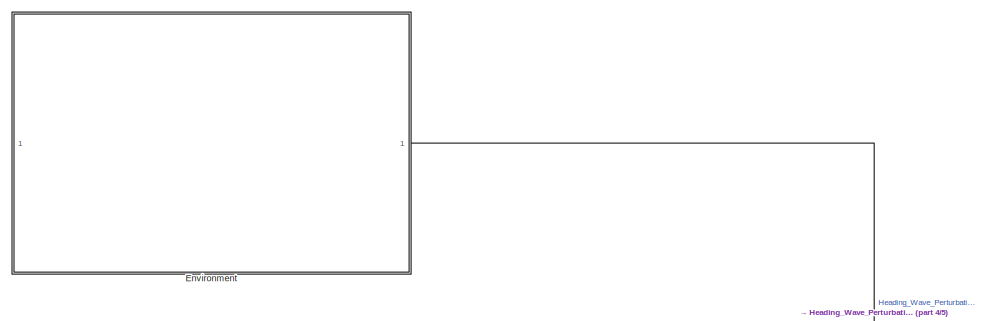
[diagram: root canvas - part 1/5, top center region]
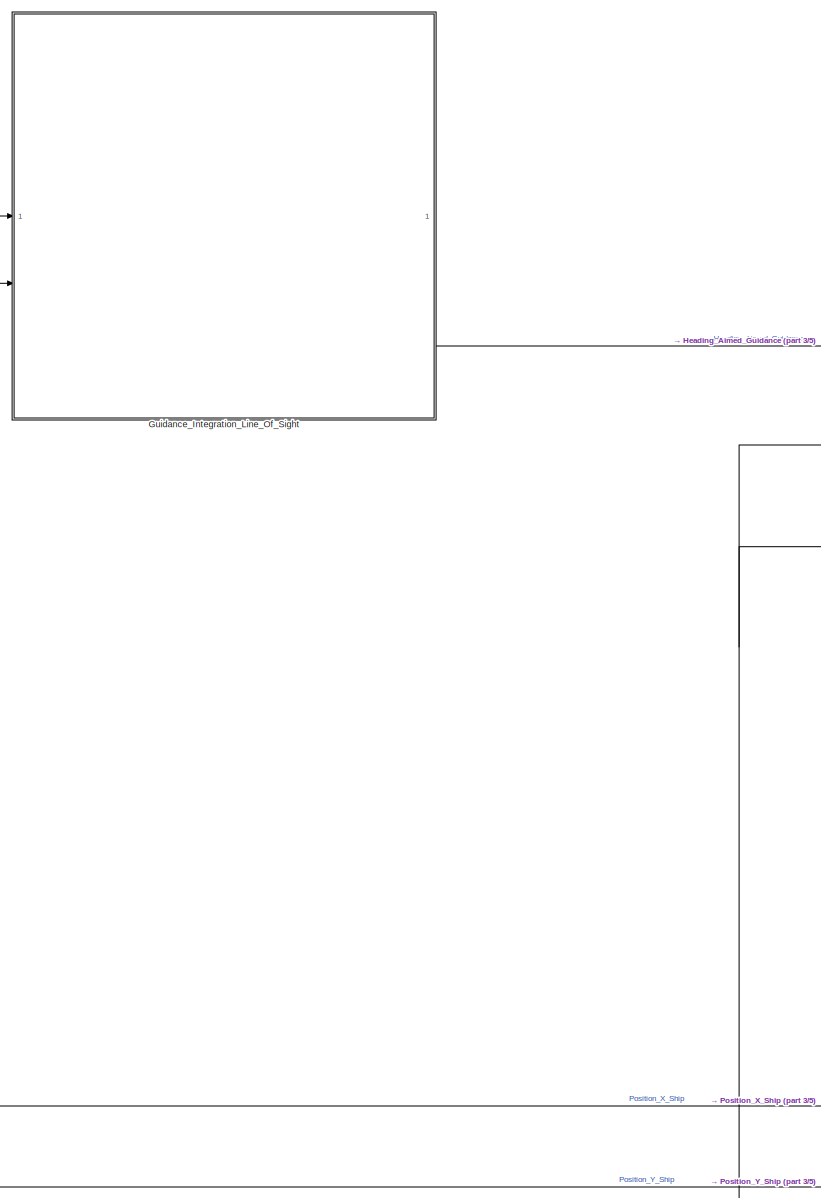
[diagram: root canvas - part 2/5, left side, full height]
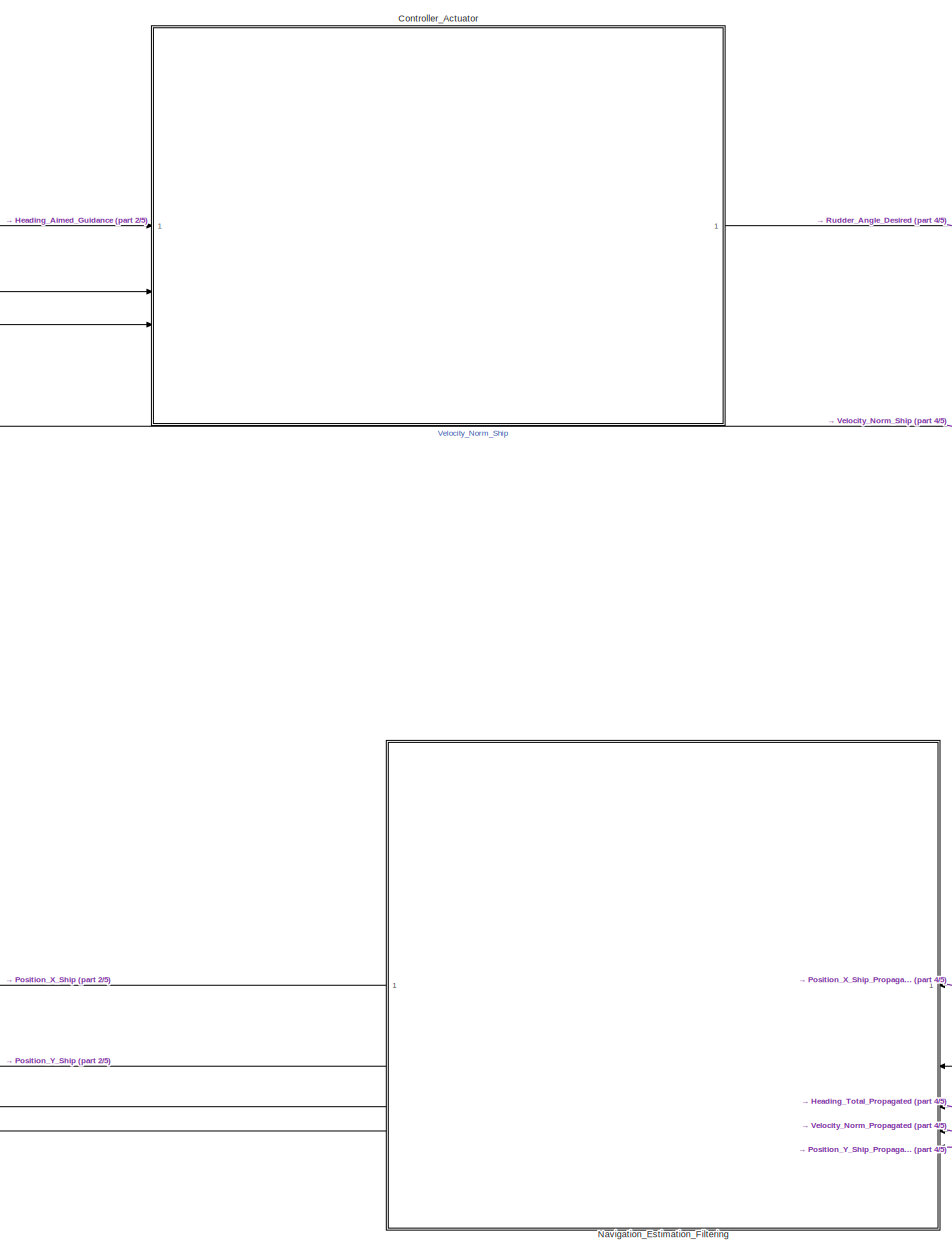
[diagram: root canvas - part 3/5, center side, full height]
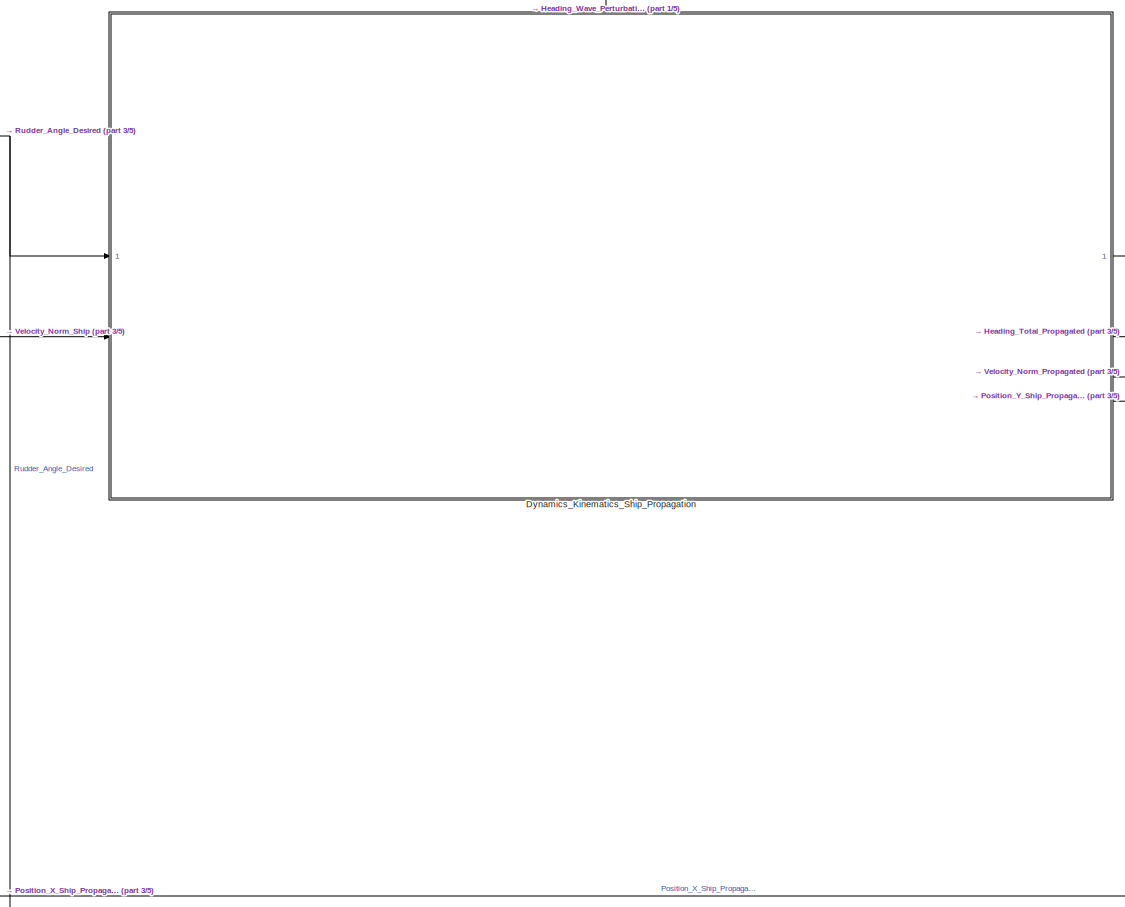
[diagram: root canvas - part 4/5, middle right region]
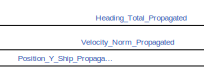
[diagram: root canvas - part 5/5, bottom right region]
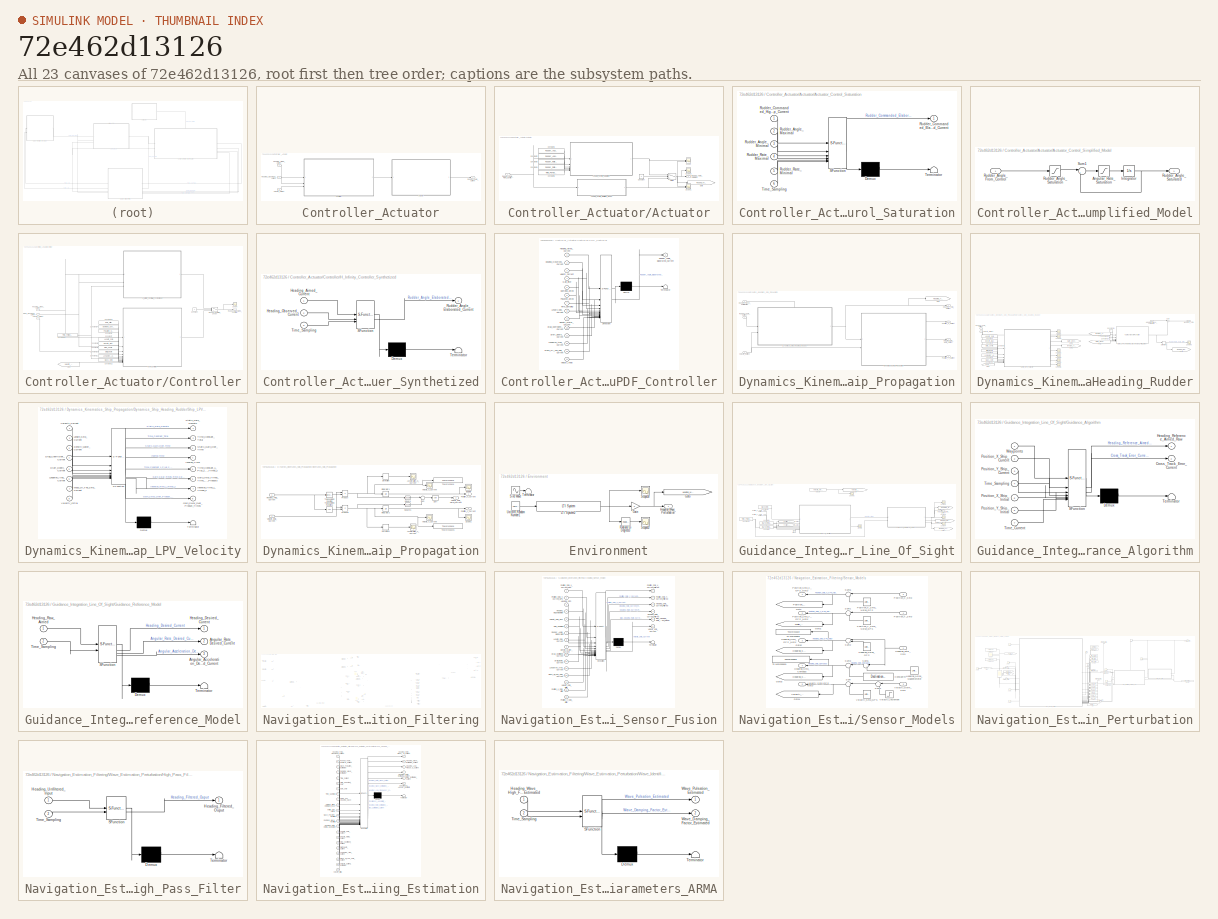
[diagram: thumbnail index - all 23 canvases of the model, root first then tree order]
MODEL slx_72e462d13126
KIND model
CONFIG AbsTol = auto
CONFIG EnableMultiTasking = off
CONFIG FixedStep = auto
CONFIG MaxStep = auto
CONFIG MinStep = auto
CONFIG RelTol = 1e-3
CONFIG SampleTimeConstraint = Unconstrained
CONFIG SolverName = VariableStepAuto
CONFIG StartTime = 0.0
CONFIG StopTime = 1400
BLOCK [SubSystem] Controller_Actuator
BLOCK [SubSystem] Controller_Actuator/Actuator
BLOCK [SubSystem] Controller_Actuator/Actuator/Actuator_Control_Saturation
  ErrorFcn = Stateflow.Translate.translate
  PermitHierarchicalResolution = ExplicitOnly
  SFBlockType = MATLAB Function
  SystemSampleTime = Time_Period_Sampling
  TreatAsAtomicUnit = on
BLOCK [Demux] Controller_Actuator/Actuator/Actuator_Control_Saturation/ Demux 
  Outputs = 1
BLOCK [S-Function] Controller_Actuator/Actuator/Actuator_Control_Saturation/ SFunction 
  EnableBusSupport = on
  FunctionName = sf_sfun
  PortCounts = [6 2]
  SFcnIsStateOwnerBlock = off
  SFunctionDeploymentMode = off
  Tag = Stateflow S-Function 4
BLOCK [Terminator] Controller_Actuator/Actuator/Actuator_Control_Saturation/ Terminator 
BLOCK [Inport] Controller_Actuator/Actuator/Actuator_Control_Saturation/Rudder_Angle_Maximal
  Port = 2
BLOCK [Inport] Controller_Actuator/Actuator/Actuator_Control_Saturation/Rudder_Angle_Minimal
  Port = 3
BLOCK [Outport] Controller_Actuator/Actuator/Actuator_Control_Saturation/Rudder_Commanded_Elaborated_Current
BLOCK [Inport] Controller_Actuator/Actuator/Actuator_Control_Saturation/Rudder_Commanded_High_Level_Loop_Current
BLOCK [Inport] Controller_Actuator/Actuator/Actuator_Control_Saturation/Rudder_Rate_Maximal
  Port = 4
BLOCK [Inport] Controller_Actuator/Actuator/Actuator_Control_Saturation/Rudder_Rate_Minimal
  Port = 5
BLOCK [Inport] Controller_Actuator/Actuator/Actuator_Control_Saturation/Time_Sampling
  Port = 6
BLOCK [SubSystem] Controller_Actuator/Actuator/Actuator_Control_Simplified_Model
BLOCK [Saturate] Controller_Actuator/Actuator/Actuator_Control_Simplified_Model/Angular_Rate_Saturation
  LowerLimit = -11*(pi/180)
  UpperLimit = 11*(pi/180)
BLOCK [Integrator] Controller_Actuator/Actuator/Actuator_Control_Simplified_Model/Integrator
BLOCK [Inport] Controller_Actuator/Actuator/Actuator_Control_Simplified_Model/Rudder_Angle_From_Control
BLOCK [Outport] Controller_Actuator/Actuator/Actuator_Control_Simplified_Model/Rudder_Angle_Saturated
BLOCK [Saturate] Controller_Actuator/Actuator/Actuator_Control_Simplified_Model/Rudder_Angle_Saturation
  LowerLimit = -Rudder_Angle_Maximal
  UpperLimit = Rudder_Angle_Maximal
BLOCK [Sum] Controller_Actuator/Actuator/Actuator_Control_Simplified_Model/Sum1
  Inputs = |+-
BLOCK [Constant] Controller_Actuator/Actuator/Constant
BLOCK [Constant] Controller_Actuator/Actuator/Constant1
  Value = Rudder_Angle_Maximal
BLOCK [Constant] Controller_Actuator/Actuator/Constant2
  Value = Rudder_Angle_Minimal
BLOCK [Constant] Controller_Actuator/Actuator/Constant3
  Value = Rudder_Rate_Maximal
BLOCK [Constant] Controller_Actuator/Actuator/Constant4
  Value = Rudder_Rate_Minimal
BLOCK [Constant] Controller_Actuator/Actuator/Constant5
  Value = Time_Period_Sampling
BLOCK [Goto] Controller_Actuator/Actuator/Goto
  GotoTag = Rudder_Angle_Saturated
  TagVisibility = global
BLOCK [Inport] Controller_Actuator/Actuator/Rudder_Angle_From_Control
BLOCK [Outport] Controller_Actuator/Actuator/Rudder_Angle_Saturated
BLOCK [Scope] Controller_Actuator/Actuator/Scope
  Floating = off
  NumInputPorts = 2
  ScopeSpecificationString = Simulink.scopes.TimeScopeBlockCfg('CurrentConfiguration', extmgr.ConfigurationSet(extmgr.Configuration('Core','General UI',true),extmgr.Configuration('Core','Source UI',true),extmgr.Configuration('Sources','WiredSimulink',true,'DataLoggingVariableName','ScopeData6'),extmgr.Configuration('Visuals','Time Domain',true,'SerializedDisplays',{struct('MinYLimReal','-0.31002','MaxYLimReal','0.409','YLabel...<+1476ch>
BLOCK [Scope] Controller_Actuator/Actuator/Scope1
  Floating = off
  NumInputPorts = 2
  ScopeSpecificationString = Simulink.scopes.TimeScopeBlockCfg('CurrentConfiguration', extmgr.ConfigurationSet(extmgr.Configuration('Core','General UI',true),extmgr.Configuration('Core','Source UI',true),extmgr.Configuration('Sources','WiredSimulink',true,'DataLoggingVariableName','ScopeData7'),extmgr.Configuration('Visuals','Time Domain',true,'SerializedDisplays',{struct('MinYLimReal','-0.18984','MaxYLimReal','0.23818','YLab...<+1509ch>
BLOCK [Scope] Controller_Actuator/Actuator/Scope2
  Floating = off
  NumInputPorts = 1
  ScopeSpecificationString = Simulink.scopes.TimeScopeBlockCfg('CurrentConfiguration', extmgr.ConfigurationSet(extmgr.Configuration('Core','General UI',true),extmgr.Configuration('Core','Source UI',true),extmgr.Configuration('Sources','WiredSimulink',true,'DataLoggingVariableName','ScopeData8'),extmgr.Configuration('Visuals','Time Domain',true,'SerializedDisplays',{struct('MinYLimReal','-0.76353','MaxYLimReal','0.76312','YLab...<+1454ch>
BLOCK [Switch] Controller_Actuator/Actuator/Switch
  Criteria = u2 > Threshold
  InputSameDT = off
  SaturateOnIntegerOverflow = off
BLOCK [SubSystem] Controller_Actuator/Controller
BLOCK [Constant] Controller_Actuator/Controller/Constant
  Value = 0
BLOCK [Constant] Controller_Actuator/Controller/Constant10
  Value = Draft_Depth
BLOCK [Constant] Controller_Actuator/Controller/Constant11
  Value = Longeron_Area
BLOCK [Constant] Controller_Actuator/Controller/Constant12
  Value = Mass_Ship
BLOCK [Constant] Controller_Actuator/Controller/Constant23
  Value = Gain_Filter
BLOCK [Constant] Controller_Actuator/Controller/Constant24
  Value = Damping_Coefficient
BLOCK [Constant] Controller_Actuator/Controller/Constant25
  Value = Time_Period_Sampling
BLOCK [Constant] Controller_Actuator/Controller/Constant6
  Value = Pulsation_Natural
BLOCK [Constant] Controller_Actuator/Controller/Constant7
  Value = Length_Ship
BLOCK [Constant] Controller_Actuator/Controller/Constant8
  Value = Density_Water_Salted
BLOCK [Constant] Controller_Actuator/Controller/Constant9
  Value = Drag_Coefficient
BLOCK [From] Controller_Actuator/Controller/From
  GotoTag = Velocity_Initial
  TagVisibility = global
BLOCK [SubSystem] Controller_Actuator/Controller/H_Infinity_Controller_Synthetized
  ErrorFcn = Stateflow.Translate.translate
  PermitHierarchicalResolution = ExplicitOnly
  SFBlockType = MATLAB Function
  SystemSampleTime = Time_Period_Sampling
  TreatAsAtomicUnit = on
BLOCK [Demux] Controller_Actuator/Controller/H_Infinity_Controller_Synthetized/ Demux 
  Outputs = 1
BLOCK [S-Function] Controller_Actuator/Controller/H_Infinity_Controller_Synthetized/ SFunction 
  EnableBusSupport = on
  FunctionName = sf_sfun
  PortCounts = [3 2]
  SFcnIsStateOwnerBlock = off
  SFunctionDeploymentMode = off
  Tag = Stateflow S-Function 2
BLOCK [Terminator] Controller_Actuator/Controller/H_Infinity_Controller_Synthetized/ Terminator 
BLOCK [Inport] Controller_Actuator/Controller/H_Infinity_Controller_Synthetized/Heading_Aimed_Current
BLOCK [Inport] Controller_Actuator/Controller/H_Infinity_Controller_Synthetized/Heading_Observed_Current
  Port = 2
BLOCK [Outport] Controller_Actuator/Controller/H_Infinity_Controller_Synthetized/Rudder_Angle_Elaborated_Current
BLOCK [Inport] Controller_Actuator/Controller/H_Infinity_Controller_Synthetized/Time_Sampling
  Port = 3
BLOCK [Inport] Controller_Actuator/Controller/Heading_Aimed_Current
BLOCK [Inport] Controller_Actuator/Controller/Heading_Observed_Current
  Port = 2
BLOCK [Switch] Controller_Actuator/Controller/Manual_Controller_Choice
  Criteria = u2 > Threshold
  InputSameDT = off
  SaturateOnIntegerOverflow = off
BLOCK [SubSystem] Controller_Actuator/Controller/PDF_Controller
  ErrorFcn = Stateflow.Translate.translate
  PermitHierarchicalResolution = ExplicitOnly
  SFBlockType = MATLAB Function
  SystemSampleTime = Time_Period_Sampling
  TreatAsAtomicUnit = on
BLOCK [Demux] Controller_Actuator/Controller/PDF_Controller/ Demux 
  Outputs = 1
BLOCK [S-Function] Controller_Actuator/Controller/PDF_Controller/ SFunction 
  EnableBusSupport = on
  FunctionName = sf_sfun
  PortCounts = [14 2]
  SFcnIsStateOwnerBlock = off
  SFunctionDeploymentMode = off
  Tag = Stateflow S-Function 13
BLOCK [Terminator] Controller_Actuator/Controller/PDF_Controller/ Terminator 
BLOCK [Inport] Controller_Actuator/Controller/PDF_Controller/Damping_Aimed
  Port = 5
BLOCK [Inport] Controller_Actuator/Controller/PDF_Controller/Density_Water_Current
  Port = 9
BLOCK [Inport] Controller_Actuator/Controller/PDF_Controller/Draft_Depth_Current
  Port = 11
BLOCK [Inport] Controller_Actuator/Controller/PDF_Controller/Drag_Coefficient_Current
  Port = 10
BLOCK [Inport] Controller_Actuator/Controller/PDF_Controller/Gain_Filter
  Port = 4
BLOCK [Inport] Controller_Actuator/Controller/PDF_Controller/Heading_Aimed_Current
BLOCK [Inport] Controller_Actuator/Controller/PDF_Controller/Heading_Observed_Current
  Port = 2
BLOCK [Inport] Controller_Actuator/Controller/PDF_Controller/Length_Ship_Current
  Port = 8
BLOCK [Inport] Controller_Actuator/Controller/PDF_Controller/Longeron_Area_Current
  Port = 12
BLOCK [Inport] Controller_Actuator/Controller/PDF_Controller/Mass_Of_The_Ship_Current
  Port = 13
BLOCK [Inport] Controller_Actuator/Controller/PDF_Controller/Pulsation_Aimed
  Port = 6
BLOCK [Outport] Controller_Actuator/Controller/PDF_Controller/Rudder_Angle_Elaborated_Current
BLOCK [Inport] Controller_Actuator/Controller/PDF_Controller/Time_Sampling
  Port = 7
BLOCK [Inport] Controller_Actuator/Controller/PDF_Controller/Velocity_Current
  Port = 3
BLOCK [Inport] Controller_Actuator/Controller/PDF_Controller/Velocity_Initial
  Port = 14
BLOCK [Outport] Controller_Actuator/Controller/Rudder_Elaborated_Controller
BLOCK [Scope] Controller_Actuator/Controller/Scope
  Floating = off
  NumInputPorts = 1
  ScopeSpecificationString = Simulink.scopes.TimeScopeBlockCfg('CurrentConfiguration', extmgr.ConfigurationSet(extmgr.Configuration('Core','General UI',true),extmgr.Configuration('Core','Source UI',true),extmgr.Configuration('Sources','WiredSimulink',true,'DataLoggingVariableName','ScopeData2'),extmgr.Configuration('Visuals','Time Domain',true,'SerializedDisplays',{struct('MinYLimReal','-1.49192','MaxYLimReal','2.78911','YLab...<+1491ch>
BLOCK [Inport] Controller_Actuator/Controller/Velocity_Current
  Port = 3
BLOCK [Inport] Controller_Actuator/Heading_Aimed_Current
BLOCK [Inport] Controller_Actuator/Heading_Observed_Current
  Port = 2
BLOCK [Outport] Controller_Actuator/Rudder_Angle_Current
BLOCK [Inport] Controller_Actuator/Velocity_Current
  Port = 3
BLOCK [SubSystem] Dynamics_Kinematics_Ship_Propagation
  PortSchema = {"entries":[{"content":{"sides":[{"content":{"connectorIds":["In1","In2"]},"type":"ConnectorPlacement.EquallySpacedRectSide","uuid":"15ab685c-7974-4319-9f6c-957ada7f76c2"},{"content":{"connectorIds":["Out1","Out2","Out3","Out4"],"side":"RIGHT"},"type":"ConnectorPlacement.EquallySpacedRectSide","uuid":"012aae79-88c5-42c2-86b9-e231f4da87b9"},{"content":{"connectorIds":["In3"],"side":"TOP"},"type":"C...<+272ch>
BLOCK [SubSystem] Dynamics_Kinematics_Ship_Propagation/Dynamics_Ship_Heading_Rudder
  PortSchema = {"entries":[{"content":{"sides":[{"content":{"connectorIds":["In1","In2"]},"type":"ConnectorPlacement.EquallySpacedRectSide","uuid":"5eab7870-9471-4536-8507-22041873c494"},{"content":{"connectorIds":["Out1"],"side":"RIGHT"},"type":"ConnectorPlacement.EquallySpacedRectSide","uuid":"f266833a-c986-4c85-b5bf-5f6330a2f0dc"},{"content":{"connectorIds":["In3"],"side":"TOP"},"type":"ConnectorPlacement.Equ...<+251ch>
BLOCK [Constant] Dynamics_Kinematics_Ship_Propagation/Dynamics_Ship_Heading_Rudder/Constant1
  Value = Length_Ship
BLOCK [Constant] Dynamics_Kinematics_Ship_Propagation/Dynamics_Ship_Heading_Rudder/Constant13
  Value = Mass_Ship
BLOCK [Constant] Dynamics_Kinematics_Ship_Propagation/Dynamics_Ship_Heading_Rudder/Constant14
  Value = 0
BLOCK [Constant] Dynamics_Kinematics_Ship_Propagation/Dynamics_Ship_Heading_Rudder/Constant15
  Value = 0
BLOCK [Constant] Dynamics_Kinematics_Ship_Propagation/Dynamics_Ship_Heading_Rudder/Constant16
  Value = 0
BLOCK [Constant] Dynamics_Kinematics_Ship_Propagation/Dynamics_Ship_Heading_Rudder/Constant2
  Value = Density_Water_Salted
BLOCK [Constant] Dynamics_Kinematics_Ship_Propagation/Dynamics_Ship_Heading_Rudder/Constant3
  Value = Drag_Coefficient
BLOCK [Constant] Dynamics_Kinematics_Ship_Propagation/Dynamics_Ship_Heading_Rudder/Constant4
  Value = Draft_Depth
BLOCK [Constant] Dynamics_Kinematics_Ship_Propagation/Dynamics_Ship_Heading_Rudder/Constant5
  Value = Longeron_Area
BLOCK [Derivative] Dynamics_Kinematics_Ship_Propagation/Dynamics_Ship_Heading_Rudder/Derivative
BLOCK [From] Dynamics_Kinematics_Ship_Propagation/Dynamics_Ship_Heading_Rudder/From
  GotoTag = Velocity_Initial
  TagVisibility = global
BLOCK [From] Dynamics_Kinematics_Ship_Propagation/Dynamics_Ship_Heading_Rudder/From1
  GotoTag = Inverse_Time_Constant
  TagVisibility = global
BLOCK [From] Dynamics_Kinematics_Ship_Propagation/Dynamics_Ship_Heading_Rudder/From2
  GotoTag = Gain_Over_Time
  TagVisibility = global
BLOCK [Goto] Dynamics_Kinematics_Ship_Propagation/Dynamics_Ship_Heading_Rudder/Goto
  GotoTag = Rudder_Rate_Simulation
  TagVisibility = global
BLOCK [Goto] Dynamics_Kinematics_Ship_Propagation/Dynamics_Ship_Heading_Rudder/Goto1
  GotoTag = Inverse_Time_Constant
  TagVisibility = global
BLOCK [Goto] Dynamics_Kinematics_Ship_Propagation/Dynamics_Ship_Heading_Rudder/Goto2
  GotoTag = Gain_Over_Time
  TagVisibility = global
BLOCK [Outport] Dynamics_Kinematics_Ship_Propagation/Dynamics_Ship_Heading_Rudder/Heading_Total
BLOCK [Inport] Dynamics_Kinematics_Ship_Propagation/Dynamics_Ship_Heading_Rudder/Heading_Wave_Perturbation
  Port = 3
BLOCK [Inport] Dynamics_Kinematics_Ship_Propagation/Dynamics_Ship_Heading_Rudder/Rudder_Angle_Current
BLOCK [Scope] Dynamics_Kinematics_Ship_Propagation/Dynamics_Ship_Heading_Rudder/Scope
  Floating = off
  NumInputPorts = 1
  ScopeSpecificationString = Simulink.scopes.TimeScopeBlockCfg('CurrentConfiguration', extmgr.ConfigurationSet(extmgr.Configuration('Core','General UI',true),extmgr.Configuration('Core','Source UI',true),extmgr.Configuration('Sources','WiredSimulink',true,'DataLoggingVariableName','ScopeData3'),extmgr.Configuration('Visuals','Time Domain',true,'SerializedDisplays',{struct('MinYLimReal','0.55628','MaxYLimReal','0.74388','YLabe...<+1507ch>
BLOCK [Scope] Dynamics_Kinematics_Ship_Propagation/Dynamics_Ship_Heading_Rudder/Scope1
  Floating = off
  NumInputPorts = 1
  ScopeSpecificationString = Simulink.scopes.TimeScopeBlockCfg('CurrentConfiguration', extmgr.ConfigurationSet(extmgr.Configuration('Core','General UI',true),extmgr.Configuration('Core','Source UI',true),extmgr.Configuration('Sources','WiredSimulink',true,'DataLoggingVariableName','ScopeData4'),extmgr.Configuration('Visuals','Time Domain',true,'SerializedDisplays',{struct('MinYLimReal','-5.61599','MaxYLimReal','-4.19967','YLa...<+1541ch>
BLOCK [Scope] Dynamics_Kinematics_Ship_Propagation/Dynamics_Ship_Heading_Rudder/Scope2
  Floating = off
  NumInputPorts = 1
  ScopeSpecificationString = Simulink.scopes.TimeScopeBlockCfg('CurrentConfiguration', extmgr.ConfigurationSet(extmgr.Configuration('Core','General UI',true),extmgr.Configuration('Core','Source UI',true),extmgr.Configuration('Sources','WiredSimulink',true,'DataLoggingVariableName','ScopeData5'),extmgr.Configuration('Visuals','Time Domain',true),extmgr.Configuration('Tools','Plot Navigation',true),extmgr.Configuration('Tools',...<+40ch>
BLOCK [Scope] Dynamics_Kinematics_Ship_Propagation/Dynamics_Ship_Heading_Rudder/Scope3
  Floating = off
  NumInputPorts = 1
  ScopeSpecificationString = Simulink.scopes.TimeScopeBlockCfg('CurrentConfiguration', extmgr.ConfigurationSet(extmgr.Configuration('Core','General UI',true),extmgr.Configuration('Core','Source UI',true),extmgr.Configuration('Sources','WiredSimulink',true,'DataLoggingVariableName','ScopeData6'),extmgr.Configuration('Visuals','Time Domain',true),extmgr.Configuration('Tools','Plot Navigation',true),extmgr.Configuration('Tools',...<+40ch>
BLOCK [Scope] Dynamics_Kinematics_Ship_Propagation/Dynamics_Ship_Heading_Rudder/Scope4
  Floating = off
  NumInputPorts = 1
  ScopeSpecificationString = Simulink.scopes.TimeScopeBlockCfg('CurrentConfiguration', extmgr.ConfigurationSet(extmgr.Configuration('Core','General UI',true),extmgr.Configuration('Core','Source UI',true),extmgr.Configuration('Sources','WiredSimulink',true,'DataLoggingVariableName','ScopeData7'),extmgr.Configuration('Visuals','Time Domain',true),extmgr.Configuration('Tools','Plot Navigation',true),extmgr.Configuration('Tools',...<+40ch>
BLOCK [Scope] Dynamics_Kinematics_Ship_Propagation/Dynamics_Ship_Heading_Rudder/Scope5
  Floating = off
  NumInputPorts = 1
  ScopeSpecificationString = Simulink.scopes.TimeScopeBlockCfg('CurrentConfiguration', extmgr.ConfigurationSet(extmgr.Configuration('Core','General UI',true),extmgr.Configuration('Core','Source UI',true),extmgr.Configuration('Sources','WiredSimulink',true,'DataLoggingVariableName','ScopeData8'),extmgr.Configuration('Visuals','Time Domain',true),extmgr.Configuration('Tools','Plot Navigation',true),extmgr.Configuration('Tools',...<+40ch>
BLOCK [Scope] Dynamics_Kinematics_Ship_Propagation/Dynamics_Ship_Heading_Rudder/Scope6
  Floating = off
  NumInputPorts = 1
  ScopeSpecificationString = Simulink.scopes.TimeScopeBlockCfg('CurrentConfiguration', extmgr.ConfigurationSet(extmgr.Configuration('Core','General UI',true),extmgr.Configuration('Core','Source UI',true),extmgr.Configuration('Sources','WiredSimulink',true,'DataLoggingVariableName','ScopeData18'),extmgr.Configuration('Visuals','Time Domain',true,'SerializedDisplays',{struct('MinYLimReal','-2223695502281968104679129808985404020...<+3929ch>
BLOCK [Reference] Dynamics_Kinematics_Ship_Propagation/Dynamics_Ship_Heading_Rudder/Ship_LPV_Heading_On_Rudder_First_Order  REF=cstblocks/Linear Parameter Varying/Varying Transfer Function
  SourceBlock = cstblocks/Linear Parameter Varying/Varying Transfer Function
  SourceType = Varying Transfer Function
BLOCK [SubSystem] Dynamics_Kinematics_Ship_Propagation/Dynamics_Ship_Heading_Rudder/Ship_LPV_Velocity
  ErrorFcn = Stateflow.Translate.translate
  PermitHierarchicalResolution = ExplicitOnly
  SFBlockType = MATLAB Function
  TreatAsAtomicUnit = on
BLOCK [Demux] Dynamics_Kinematics_Ship_Propagation/Dynamics_Ship_Heading_Rudder/Ship_LPV_Velocity/ Demux 
  Outputs = 1
BLOCK [S-Function] Dynamics_Kinematics_Ship_Propagation/Dynamics_Ship_Heading_Rudder/Ship_LPV_Velocity/ SFunction 
  EnableBusSupport = on
  FunctionName = sf_sfun
  PortCounts = [8 9]
  SFcnIsStateOwnerBlock = off
  SFunctionDeploymentMode = off
  Tag = Stateflow S-Function 17
BLOCK [Terminator] Dynamics_Kinematics_Ship_Propagation/Dynamics_Ship_Heading_Rudder/Ship_LPV_Velocity/ Terminator 
BLOCK [Inport] Dynamics_Kinematics_Ship_Propagation/Dynamics_Ship_Heading_Rudder/Ship_LPV_Velocity/Density_Water_Current
  Port = 3
BLOCK [Inport] Dynamics_Kinematics_Ship_Propagation/Dynamics_Ship_Heading_Rudder/Ship_LPV_Velocity/Draft_Depth_Current
  Port = 5
BLOCK [Inport] Dynamics_Kinematics_Ship_Propagation/Dynamics_Ship_Heading_Rudder/Ship_LPV_Velocity/Drag_Coefficient_Current
  Port = 4
BLOCK [Outport] Dynamics_Kinematics_Ship_Propagation/Dynamics_Ship_Heading_Rudder/Ship_LPV_Velocity/Gain_Sway_Over_Product_Times
  Port = 8
BLOCK [Outport] Dynamics_Kinematics_Ship_Propagation/Dynamics_Ship_Heading_Rudder/Ship_LPV_Velocity/Gain_Sway_Times_Time_Sway_Over_Times_Products
  Port = 6
BLOCK [Outport] Dynamics_Kinematics_Ship_Propagation/Dynamics_Ship_Heading_Rudder/Ship_LPV_Velocity/Ineverse_Time_1_Times_2
  Port = 7
BLOCK [Outport] Dynamics_Kinematics_Ship_Propagation/Dynamics_Ship_Heading_Rudder/Ship_LPV_Velocity/Inverse_Time
  Port = 4
BLOCK [Inport] Dynamics_Kinematics_Ship_Propagation/Dynamics_Ship_Heading_Rudder/Ship_LPV_Velocity/Length_Ship_Current
  Port = 2
BLOCK [Inport] Dynamics_Kinematics_Ship_Propagation/Dynamics_Ship_Heading_Rudder/Ship_LPV_Velocity/Longeron_Area_Current
  Port = 6
BLOCK [Inport] Dynamics_Kinematics_Ship_Propagation/Dynamics_Ship_Heading_Rudder/Ship_LPV_Velocity/Mass_Of_The_Ship_Current
  Port = 7
BLOCK [Outport] Dynamics_Kinematics_Ship_Propagation/Dynamics_Ship_Heading_Rudder/Ship_LPV_Velocity/Static_Gain_Nomoto
BLOCK [Outport] Dynamics_Kinematics_Ship_Propagation/Dynamics_Ship_Heading_Rudder/Ship_LPV_Velocity/Static_Gain_Over_Time
  Port = 3
BLOCK [Outport] Dynamics_Kinematics_Ship_Propagation/Dynamics_Ship_Heading_Rudder/Ship_LPV_Velocity/Time_Constant_1_Plus_2_Over_1_Times_2
  Port = 5
BLOCK [Outport] Dynamics_Kinematics_Ship_Propagation/Dynamics_Ship_Heading_Rudder/Ship_LPV_Velocity/Time_Constant_Total
  Port = 2
BLOCK [Inport] Dynamics_Kinematics_Ship_Propagation/Dynamics_Ship_Heading_Rudder/Ship_LPV_Velocity/Velocity_Current
BLOCK [Inport] Dynamics_Kinematics_Ship_Propagation/Dynamics_Ship_Heading_Rudder/Ship_LPV_Velocity/Velocity_Initial
  Port = 8
BLOCK [Sum] Dynamics_Kinematics_Ship_Propagation/Dynamics_Ship_Heading_Rudder/Sum
  Inputs = |++
BLOCK [Inport] Dynamics_Kinematics_Ship_Propagation/Dynamics_Ship_Heading_Rudder/Velocity_Current
  Port = 2
BLOCK [Goto] Dynamics_Kinematics_Ship_Propagation/Goto
  GotoTag = Heading_Total_Perturbed
  TagVisibility = global
BLOCK [Outport] Dynamics_Kinematics_Ship_Propagation/Heading_Total_Current
  Port = 2
BLOCK [Inport] Dynamics_Kinematics_Ship_Propagation/Heading_Wave_Perturbation
  Port = 3
BLOCK [SubSystem] Dynamics_Kinematics_Ship_Propagation/Kinematics_Ship_Propagation
BLOCK [Scope] Dynamics_Kinematics_Ship_Propagation/Kinematics_Ship_Propagation/Acceleration_X_Current
  Floating = off
  NumInputPorts = 1
  ScopeSpecificationString = Simulink.scopes.TimeScopeBlockCfg('CurrentConfiguration', extmgr.ConfigurationSet(extmgr.Configuration('Core','General UI',true),extmgr.Configuration('Core','Source UI',true),extmgr.Configuration('Sources','WiredSimulink',true,'DataLoggingVariableName','ScopeData12'),extmgr.Configuration('Visuals','Time Domain',true),extmgr.Configuration('Tools','Plot Navigation',true),extmgr.Configuration('Tools'...<+41ch>
BLOCK [Scope] Dynamics_Kinematics_Ship_Propagation/Kinematics_Ship_Propagation/Acceleration_Y_Current
  Floating = off
  NumInputPorts = 1
  ScopeSpecificationString = Simulink.scopes.TimeScopeBlockCfg('CurrentConfiguration', extmgr.ConfigurationSet(extmgr.Configuration('Core','General UI',true),extmgr.Configuration('Core','Source UI',true),extmgr.Configuration('Sources','WiredSimulink',true,'DataLoggingVariableName','ScopeData11'),extmgr.Configuration('Visuals','Time Domain',true),extmgr.Configuration('Tools','Plot Navigation',true),extmgr.Configuration('Tools'...<+41ch>
BLOCK [Derivative] Dynamics_Kinematics_Ship_Propagation/Kinematics_Ship_Propagation/Derivative
BLOCK [Derivative] Dynamics_Kinematics_Ship_Propagation/Kinematics_Ship_Propagation/Derivative1
BLOCK [Inport] Dynamics_Kinematics_Ship_Propagation/Kinematics_Ship_Propagation/Heading_Total_Current
BLOCK [Integrator] Dynamics_Kinematics_Ship_Propagation/Kinematics_Ship_Propagation/Integrator1
  InitialCondition = Position_Initial_X
BLOCK [Integrator] Dynamics_Kinematics_Ship_Propagation/Kinematics_Ship_Propagation/Integrator2
  InitialCondition = Position_Initial_Y
BLOCK [Outport] Dynamics_Kinematics_Ship_Propagation/Kinematics_Ship_Propagation/Position_X_Current
BLOCK [Outport] Dynamics_Kinematics_Ship_Propagation/Kinematics_Ship_Propagation/Position_Y_Current
  Port = 3
BLOCK [Product] Dynamics_Kinematics_Ship_Propagation/Kinematics_Ship_Propagation/Product
BLOCK [Product] Dynamics_Kinematics_Ship_Propagation/Kinematics_Ship_Propagation/Product1
BLOCK [Scope] Dynamics_Kinematics_Ship_Propagation/Kinematics_Ship_Propagation/Scope
  Floating = off
  NumInputPorts = 1
  ScopeSpecificationString = Simulink.scopes.TimeScopeBlockCfg('CurrentConfiguration', extmgr.ConfigurationSet(extmgr.Configuration('Core','General UI',true),extmgr.Configuration('Core','Source UI',true),extmgr.Configuration('Sources','WiredSimulink',true,'DataLoggingVariableName','ScopeData3'),extmgr.Configuration('Visuals','Time Domain',true,'SerializedDisplays',{struct('MinYLimReal','159.08659','MaxYLimReal','1282.22136','...<+1477ch>
BLOCK [Scope] Dynamics_Kinematics_Ship_Propagation/Kinematics_Ship_Propagation/Scope1
  Floating = off
  NumInputPorts = 1
  ScopeSpecificationString = Simulink.scopes.TimeScopeBlockCfg('CurrentConfiguration', extmgr.ConfigurationSet(extmgr.Configuration('Core','General UI',true),extmgr.Configuration('Core','Source UI',true),extmgr.Configuration('Sources','WiredSimulink',true,'DataLoggingVariableName','ScopeData4'),extmgr.Configuration('Visuals','Time Domain',true,'SerializedDisplays',{struct('MinYLimReal','249.44165','MaxYLimReal','510.47579','Y...<+1473ch>
BLOCK [Sqrt] Dynamics_Kinematics_Ship_Propagation/Kinematics_Ship_Propagation/Sqrt
BLOCK [Math] Dynamics_Kinematics_Ship_Propagation/Kinematics_Ship_Propagation/Square
  Operator = square
BLOCK [Math] Dynamics_Kinematics_Ship_Propagation/Kinematics_Ship_Propagation/Square1
  Operator = square
BLOCK [Sum] Dynamics_Kinematics_Ship_Propagation/Kinematics_Ship_Propagation/Sum
  Inputs = |++
BLOCK [ToWorkspace] Dynamics_Kinematics_Ship_Propagation/Kinematics_Ship_Propagation/To Workspace
  FixptAsFi = on
  MaxDataPoints = inf
  SampleTime = -1
  SaveFormat = Timeseries
  VariableName = Velocity_Along_X_Axis_Local
BLOCK [ToWorkspace] Dynamics_Kinematics_Ship_Propagation/Kinematics_Ship_Propagation/To Workspace1
  FixptAsFi = on
  MaxDataPoints = inf
  SampleTime = -1
  SaveFormat = Timeseries
  VariableName = Velocity_Along_Y_Axis_Local
BLOCK [Trigonometry] Dynamics_Kinematics_Ship_Propagation/Kinematics_Ship_Propagation/Trigonometric Function
BLOCK [Trigonometry] Dynamics_Kinematics_Ship_Propagation/Kinematics_Ship_Propagation/Trigonometric Function1
  Operator = cos
BLOCK [Inport] Dynamics_Kinematics_Ship_Propagation/Kinematics_Ship_Propagation/Velocity_Ship_Current
  Port = 2
BLOCK [Outport] Dynamics_Kinematics_Ship_Propagation/Kinematics_Ship_Propagation/Velocity_Ship_Norm_Current
  Port = 2
BLOCK [Scope] Dynamics_Kinematics_Ship_Propagation/Kinematics_Ship_Propagation/Velocity_X_Current
  Floating = off
  NumInputPorts = 1
  ScopeSpecificationString = Simulink.scopes.TimeScopeBlockCfg('CurrentConfiguration', extmgr.ConfigurationSet(extmgr.Configuration('Core','General UI',true),extmgr.Configuration('Core','Source UI',true),extmgr.Configuration('Sources','WiredSimulink',true,'DataLoggingVariableName','ScopeData13'),extmgr.Configuration('Visuals','Time Domain',true,'SerializedDisplays',{struct('MinYLimReal','-0.30459','MaxYLimReal','1.87159','YLa...<+1456ch>
BLOCK [Scope] Dynamics_Kinematics_Ship_Propagation/Kinematics_Ship_Propagation/Velocity_Y_Current
  Floating = off
  NumInputPorts = 1
  ScopeSpecificationString = Simulink.scopes.TimeScopeBlockCfg('CurrentConfiguration', extmgr.ConfigurationSet(extmgr.Configuration('Core','General UI',true),extmgr.Configuration('Core','Source UI',true),extmgr.Configuration('Sources','WiredSimulink',true,'DataLoggingVariableName','ScopeData14'),extmgr.Configuration('Visuals','Time Domain',true,'SerializedDisplays',{struct('MinYLimReal','-1.14513','MaxYLimReal','1.97909','YLa...<+1457ch>
BLOCK [Outport] Dynamics_Kinematics_Ship_Propagation/Position_X_Current
BLOCK [Outport] Dynamics_Kinematics_Ship_Propagation/Position_Y_Current
  Port = 4
BLOCK [Inport] Dynamics_Kinematics_Ship_Propagation/Rudder_Angle_Current
BLOCK [Inport] Dynamics_Kinematics_Ship_Propagation/Velocity_Current
  Port = 2
BLOCK [Outport] Dynamics_Kinematics_Ship_Propagation/Velocity_Ship_Norm_Current
  Port = 3
BLOCK [SubSystem] Environment
BLOCK [Gain] Environment/Gain
BLOCK [Goto] Environment/Goto
  GotoTag = Heading_Wave_Perturbation
  TagVisibility = global
BLOCK [Outport] Environment/Heading_Wave_Perturbation
BLOCK [Reference] Environment/LTI System2  REF=cstblocks/LTI System
  SourceBlock = cstblocks/LTI System
  SourceType = LTI Block
BLOCK [Reference] Environment/Radians to Degrees3  REF=simulink_extras/Transformations/Radians
to Degrees
  SourceBlock = simulink_extras/Transformations/Radians\nto Degrees
  SourceType = RadiansToDegrees
BLOCK [Scope] Environment/Scope18
  Floating = off
  NumInputPorts = 1
  ScopeSpecificationString = Simulink.scopes.TimeScopeBlockCfg('CurrentConfiguration', extmgr.ConfigurationSet(extmgr.Configuration('Core','General UI',true),extmgr.Configuration('Core','Source UI',true),extmgr.Configuration('Sources','WiredSimulink',true,'DataLoggingVariableName','ScopeData9'),extmgr.Configuration('Visuals','Time Domain',true,'SerializedDisplays',{struct('MinYLimReal','-0.15462','MaxYLimReal','0.13327','YLab...<+1490ch>
BLOCK [Scope] Environment/Scope43
  Floating = off
  NumInputPorts = 1
  ScopeSpecificationString = Simulink.scopes.TimeScopeBlockCfg('CurrentConfiguration', extmgr.ConfigurationSet(extmgr.Configuration('Core','General UI',true),extmgr.Configuration('Core','Source UI',true),extmgr.Configuration('Sources','WiredSimulink',true,'DataLoggingVariableName','ScopeData10'),extmgr.Configuration('Visuals','Time Domain',true,'SerializedDisplays',{struct('MinYLimReal','-8.85919','MaxYLimReal','7.63559','YLa...<+1499ch>
BLOCK [Sin] Environment/Sine Wave
  Amplitude = 6*(pi/180)
  Frequency = 1.2
  SampleTime = 0
BLOCK [Terminator] Environment/Terminator
BLOCK [UniformRandomNumber] Environment/Uniform Random Number1
  Maximum = 17*(pi/180)
  Minimum = -17*(pi/180)
  SampleTime = Time_Period_Sampling
BLOCK [SubSystem] Guidance_Integration_Line_Of_Sight
BLOCK [Clock] Guidance_Integration_Line_Of_Sight/Clock
BLOCK [Constant] Guidance_Integration_Line_Of_Sight/Constant1
  Value = Waypoints(1,1)
BLOCK [Constant] Guidance_Integration_Line_Of_Sight/Constant18
  Value = Waypoints
BLOCK [Constant] Guidance_Integration_Line_Of_Sight/Constant2
  Value = Waypoints(1,2)
BLOCK [Constant] Guidance_Integration_Line_Of_Sight/Constant21
  Value = Time_Period_Sampling
BLOCK [Goto] Guidance_Integration_Line_Of_Sight/Goto
  GotoTag = Velocity_Initial
  TagVisibility = global
BLOCK [Goto] Guidance_Integration_Line_Of_Sight/Goto1
  GotoTag = Heading_Guidance
  TagVisibility = global
BLOCK [Goto] Guidance_Integration_Line_Of_Sight/Goto2
  GotoTag = Position_X_Initial_Ship
  TagVisibility = global
BLOCK [Goto] Guidance_Integration_Line_Of_Sight/Goto3
  GotoTag = Position_Y_Initial_Ship
  TagVisibility = global
BLOCK [Goto] Guidance_Integration_Line_Of_Sight/Goto4
  GotoTag = Rudder_Acceleration_Desired
  TagVisibility = global
BLOCK [Goto] Guidance_Integration_Line_Of_Sight/Goto5
  GotoTag = Rudder_Rate_Desired
  TagVisibility = global
BLOCK [SubSystem] Guidance_Integration_Line_Of_Sight/Guidance_Algorithm
  ErrorFcn = Stateflow.Translate.translate
  PermitHierarchicalResolution = ExplicitOnly
  SFBlockType = MATLAB Function
  SystemSampleTime = Time_Period_Sampling
  TreatAsAtomicUnit = on
BLOCK [Demux] Guidance_Integration_Line_Of_Sight/Guidance_Algorithm/ Demux 
  Outputs = 1
BLOCK [S-Function] Guidance_Integration_Line_Of_Sight/Guidance_Algorithm/ SFunction 
  EnableBusSupport = on
  FunctionName = sf_sfun
  PortCounts = [7 3]
  SFcnIsStateOwnerBlock = off
  SFunctionDeploymentMode = off
  Tag = Stateflow S-Function 1
BLOCK [Terminator] Guidance_Integration_Line_Of_Sight/Guidance_Algorithm/ Terminator 
BLOCK [Outport] Guidance_Integration_Line_Of_Sight/Guidance_Algorithm/Cross_Track_Error_Current
  Port = 2
BLOCK [Outport] Guidance_Integration_Line_Of_Sight/Guidance_Algorithm/Heading_Reference_Aimed_Raw
BLOCK [Inport] Guidance_Integration_Line_Of_Sight/Guidance_Algorithm/Position_X_Ship_Current
  Port = 2
BLOCK [Inport] Guidance_Integration_Line_Of_Sight/Guidance_Algorithm/Position_X_Ship_Initial
  Port = 5
BLOCK [Inport] Guidance_Integration_Line_Of_Sight/Guidance_Algorithm/Position_Y_Ship_Current
  Port = 3
BLOCK [Inport] Guidance_Integration_Line_Of_Sight/Guidance_Algorithm/Position_Y_Ship_Initial
  Port = 6
BLOCK [Inport] Guidance_Integration_Line_Of_Sight/Guidance_Algorithm/Time_Current
  Port = 7
BLOCK [Inport] Guidance_Integration_Line_Of_Sight/Guidance_Algorithm/Time_Sampling
  Port = 4
BLOCK [Inport] Guidance_Integration_Line_Of_Sight/Guidance_Algorithm/Waypoints
BLOCK [SubSystem] Guidance_Integration_Line_Of_Sight/Guidance_Reference_Model
  ErrorFcn = Stateflow.Translate.translate
  PermitHierarchicalResolution = ExplicitOnly
  SFBlockType = MATLAB Function
  SystemSampleTime = Time_Period_Sampling
  TreatAsAtomicUnit = on
BLOCK [Demux] Guidance_Integration_Line_Of_Sight/Guidance_Reference_Model/ Demux 
  Outputs = 1
BLOCK [S-Function] Guidance_Integration_Line_Of_Sight/Guidance_Reference_Model/ SFunction 
  EnableBusSupport = on
  FunctionName = sf_sfun
  PortCounts = [2 4]
  SFcnIsStateOwnerBlock = off
  SFunctionDeploymentMode = off
  Tag = Stateflow S-Function 3
BLOCK [Terminator] Guidance_Integration_Line_Of_Sight/Guidance_Reference_Model/ Terminator 
BLOCK [Outport] Guidance_Integration_Line_Of_Sight/Guidance_Reference_Model/Angular_Acceleration_Desired_Current
  Port = 3
BLOCK [Outport] Guidance_Integration_Line_Of_Sight/Guidance_Reference_Model/Angular_Rate_Desired_Current
  Port = 2
BLOCK [Outport] Guidance_Integration_Line_Of_Sight/Guidance_Reference_Model/Heading_Desired_Current
BLOCK [Inport] Guidance_Integration_Line_Of_Sight/Guidance_Reference_Model/Heading_Raw_Aimed
BLOCK [Inport] Guidance_Integration_Line_Of_Sight/Guidance_Reference_Model/Time_Sampling
  Port = 2
BLOCK [Outport] Guidance_Integration_Line_Of_Sight/Heading_Desired_Current
BLOCK [Inport] Guidance_Integration_Line_Of_Sight/Position_X_Ship_Current
BLOCK [Inport] Guidance_Integration_Line_Of_Sight/Position_Y_Ship_Current
  Port = 2
BLOCK [Scope] Guidance_Integration_Line_Of_Sight/Scope
  Floating = off
  NumInputPorts = 1
  ScopeSpecificationString = Simulink.scopes.TimeScopeBlockCfg('CurrentConfiguration', extmgr.ConfigurationSet(extmgr.Configuration('Core','General UI',true),extmgr.Configuration('Core','Source UI',true),extmgr.Configuration('Sources','WiredSimulink',true),extmgr.Configuration('Visuals','Time Domain',true,'SerializedDisplays',{struct('MinYLimReal','-24.40366','MaxYLimReal','16.66404','YLabelReal','','MinYLimMag','0.00000','Ma...<+1503ch>
BLOCK [Scope] Guidance_Integration_Line_Of_Sight/Scope1
  Floating = off
  NumInputPorts = 1
  ScopeSpecificationString = Simulink.scopes.TimeScopeBlockCfg('CurrentConfiguration', extmgr.ConfigurationSet(extmgr.Configuration('Core','General UI',true),extmgr.Configuration('Core','Source UI',true),extmgr.Configuration('Sources','WiredSimulink',true,'DataLoggingVariableName','ScopeData1'),extmgr.Configuration('Visuals','Time Domain',true,'SerializedDisplays',{struct('MinYLimReal','-0.01066','MaxYLimReal','0.07118','YLab...<+1526ch>
BLOCK [Scope] Guidance_Integration_Line_Of_Sight/Scope2
  Floating = off
  NumInputPorts = 1
  ScopeSpecificationString = Simulink.scopes.TimeScopeBlockCfg('CurrentConfiguration', extmgr.ConfigurationSet(extmgr.Configuration('Core','General UI',true),extmgr.Configuration('Core','Source UI',true),extmgr.Configuration('Sources','WiredSimulink',true,'DataLoggingVariableName','ScopeData1'),extmgr.Configuration('Visuals','Time Domain',true,'SerializedDisplays',{struct('MinYLimReal','-0.31261','MaxYLimReal','2.81347','YLab...<+1515ch>
BLOCK [Scope] Guidance_Integration_Line_Of_Sight/Scope3
  Floating = off
  NumInputPorts = 1
  ScopeSpecificationString = Simulink.scopes.TimeScopeBlockCfg('CurrentConfiguration', extmgr.ConfigurationSet(extmgr.Configuration('Core','General UI',true),extmgr.Configuration('Core','Source UI',true),extmgr.Configuration('Sources','WiredSimulink',true,'DataLoggingVariableName','ScopeData5'),extmgr.Configuration('Visuals','Time Domain',true,'SerializedDisplays',{struct('MinYLimReal','0.66667','MaxYLimReal','2.66667','YLabe...<+1489ch>
BLOCK [Scope] Guidance_Integration_Line_Of_Sight/Scope4
  Floating = off
  NumInputPorts = 1
  ScopeSpecificationString = Simulink.scopes.TimeScopeBlockCfg('CurrentConfiguration', extmgr.ConfigurationSet(extmgr.Configuration('Core','General UI',true),extmgr.Configuration('Core','Source UI',true),extmgr.Configuration('Sources','WiredSimulink',true,'DataLoggingVariableName','ScopeData1'),extmgr.Configuration('Visuals','Time Domain',true,'SerializedDisplays',{struct('MinYLimReal','-0.06188','MaxYLimReal','0.03205','YLab...<+1509ch>
BLOCK [Constant] Guidance_Integration_Line_Of_Sight/Velocity
  Value = Velocity_Norm_Ship_Initial
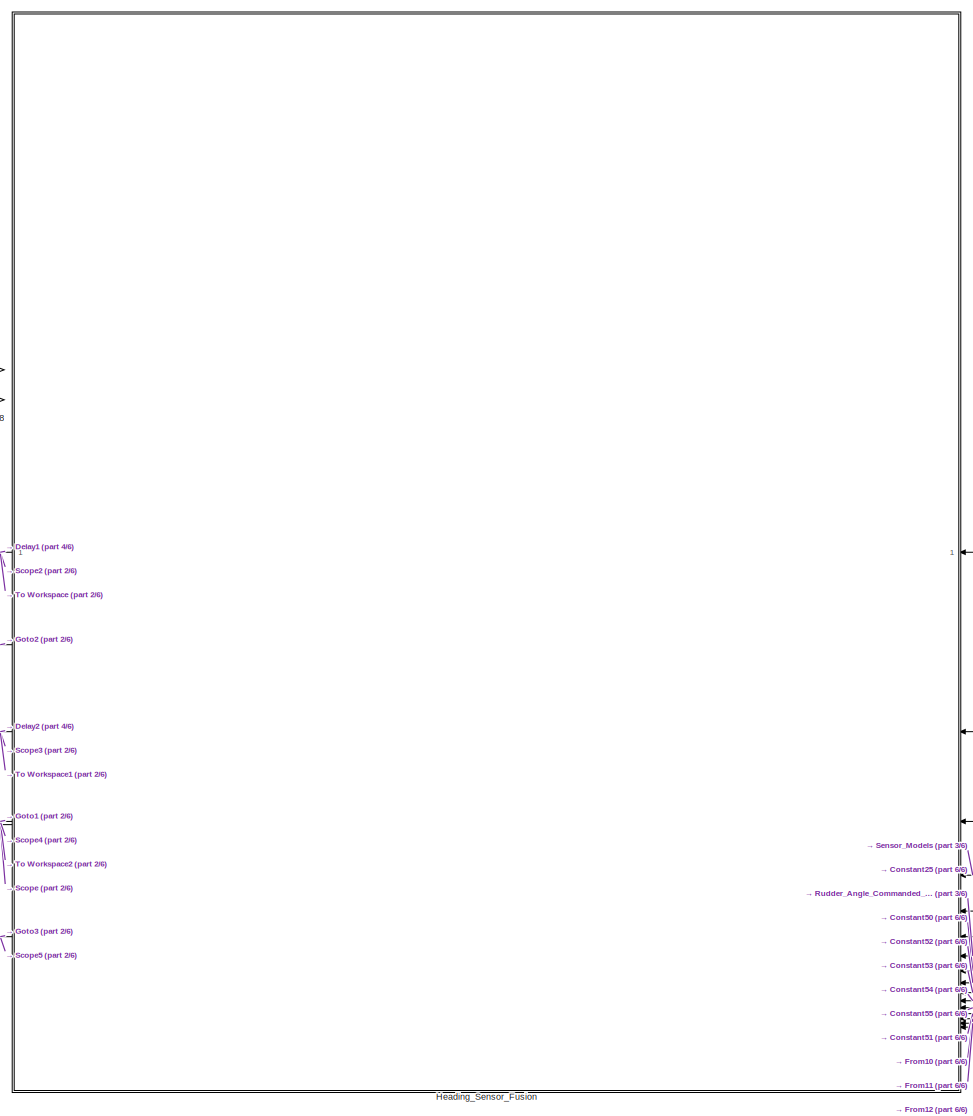
[diagram: Navigation_Estimation_Filtering - part 1/6, center side, full height]
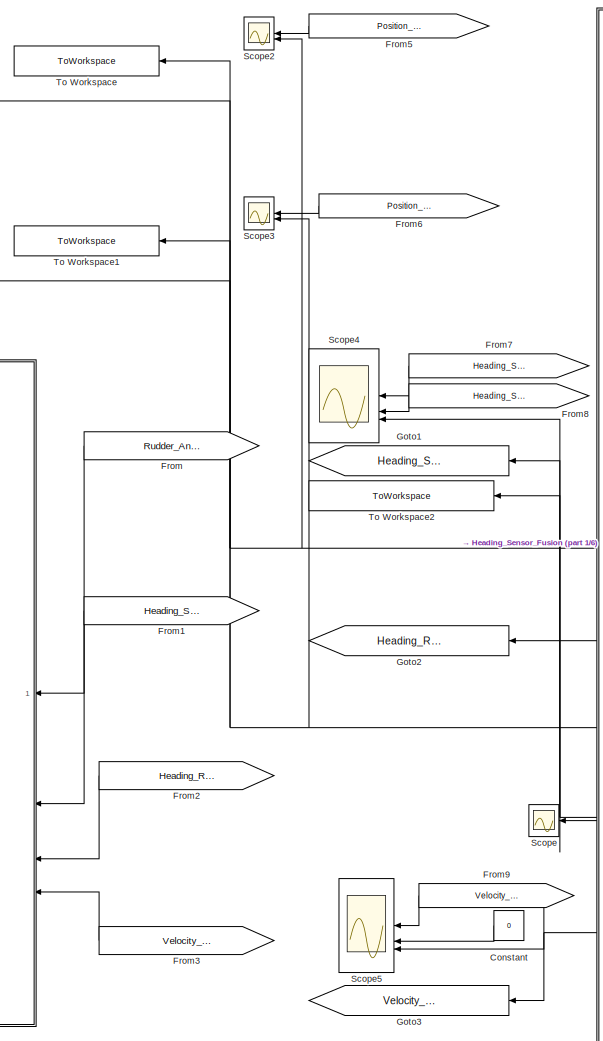
[diagram: Navigation_Estimation_Filtering - part 2/6, center side, full height]
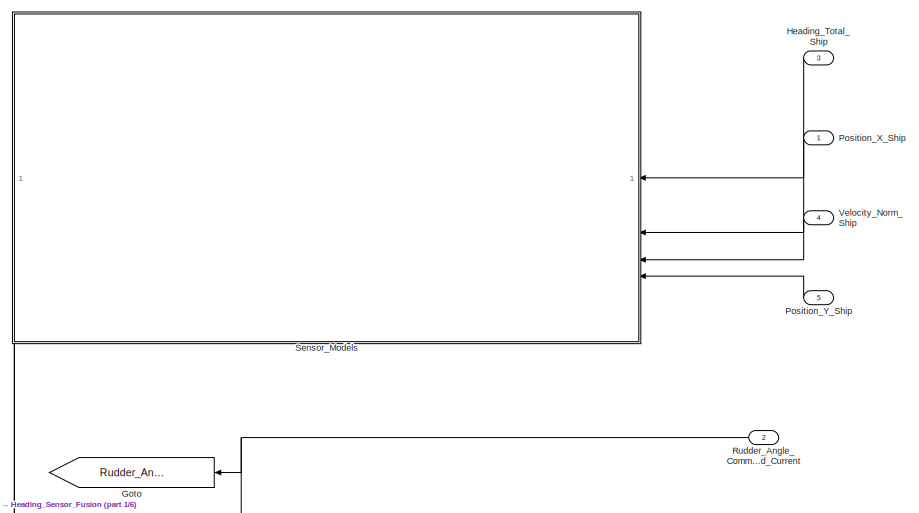
[diagram: Navigation_Estimation_Filtering - part 3/6, top right region]
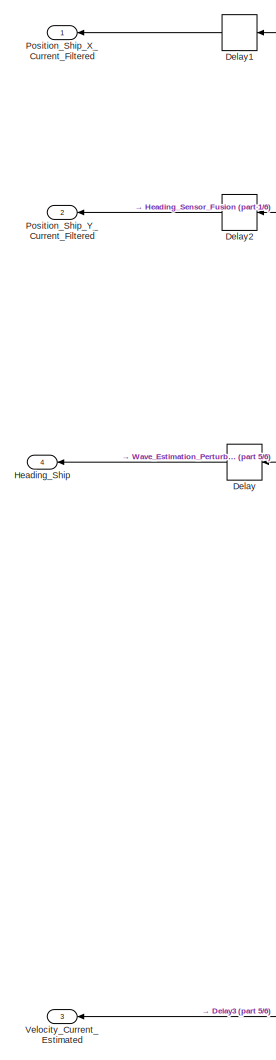
[diagram: Navigation_Estimation_Filtering - part 4/6, left side, full height]
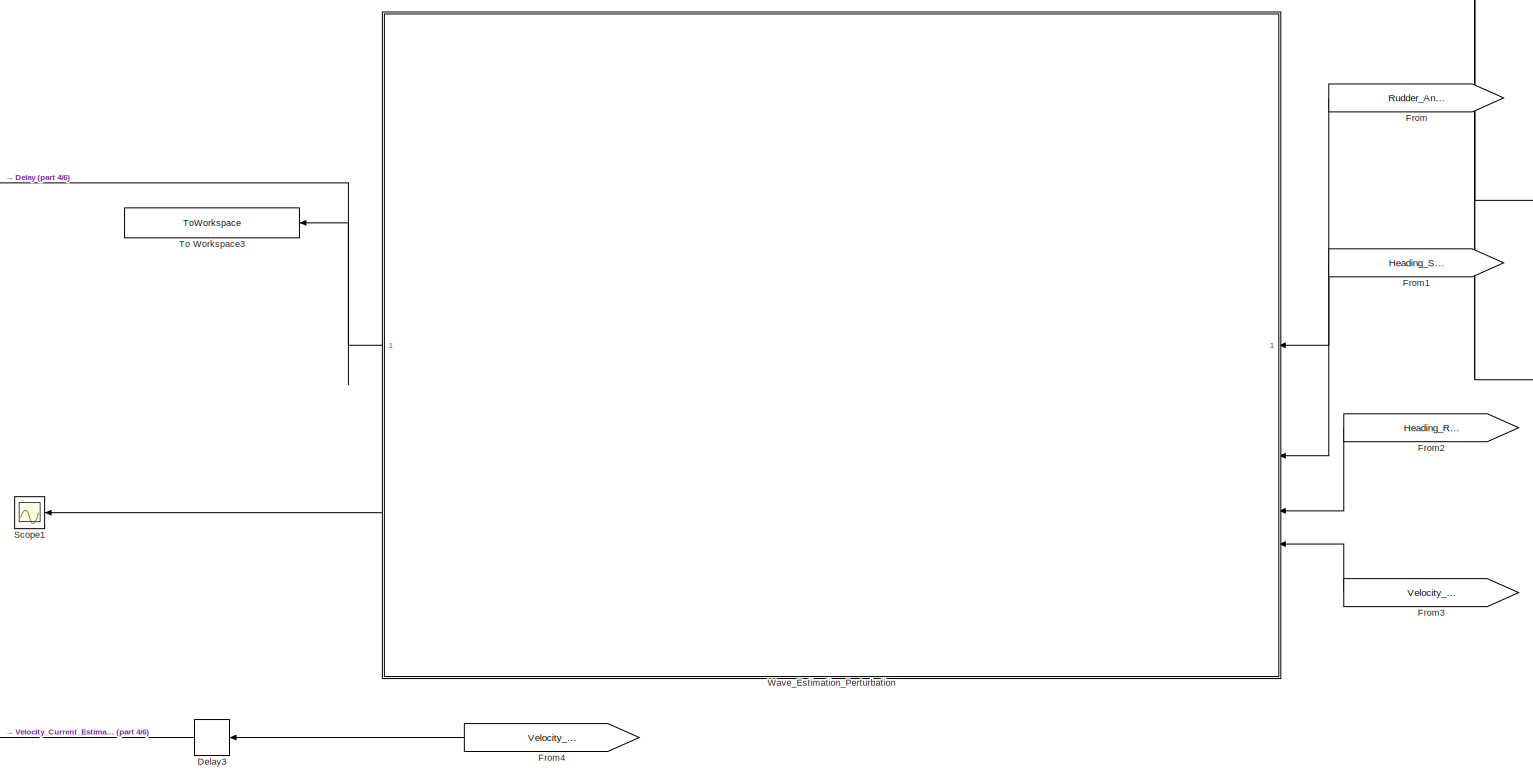
[diagram: Navigation_Estimation_Filtering - part 5/6, middle left region]
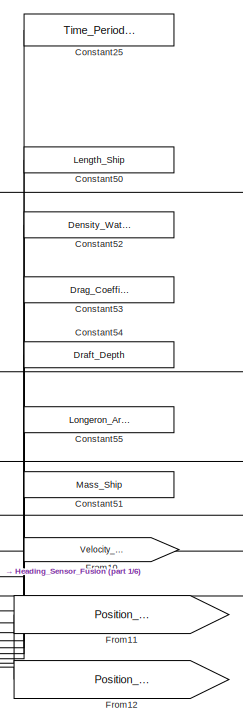
[diagram: Navigation_Estimation_Filtering - part 6/6, middle right region]
BLOCK [SubSystem] Navigation_Estimation_Filtering
BLOCK [Constant] Navigation_Estimation_Filtering/Constant
  Value = 0
BLOCK [Constant] Navigation_Estimation_Filtering/Constant25
  Value = Time_Period_Sampling
BLOCK [Constant] Navigation_Estimation_Filtering/Constant50
  Value = Length_Ship
BLOCK [Constant] Navigation_Estimation_Filtering/Constant51
  Value = Mass_Ship
BLOCK [Constant] Navigation_Estimation_Filtering/Constant52
  Value = Density_Water_Salted
BLOCK [Constant] Navigation_Estimation_Filtering/Constant53
  Value = Drag_Coefficient
BLOCK [Constant] Navigation_Estimation_Filtering/Constant54
  Value = Draft_Depth
BLOCK [Constant] Navigation_Estimation_Filtering/Constant55
  Value = Longeron_Area
BLOCK [Delay] Navigation_Estimation_Filtering/Delay
  DelayLength = 1
  InputPortMap = u0
  InputProcessing = Columns as channels (frame based)
  SampleTime = Time_Period_Sampling
BLOCK [Delay] Navigation_Estimation_Filtering/Delay1
  DelayLength = 1
  InputPortMap = u0
  InputProcessing = Columns as channels (frame based)
  SampleTime = Time_Period_Sampling
BLOCK [Delay] Navigation_Estimation_Filtering/Delay2
  DelayLength = 1
  InputPortMap = u0
  InputProcessing = Columns as channels (frame based)
  SampleTime = Time_Period_Sampling
BLOCK [Delay] Navigation_Estimation_Filtering/Delay3
  DelayLength = 1
  InputPortMap = u0
  InputProcessing = Columns as channels (frame based)
  SampleTime = Time_Period_Sampling
BLOCK [From] Navigation_Estimation_Filtering/From
  GotoTag = Rudder_Angle_Current
  TagVisibility = global
BLOCK [From] Navigation_Estimation_Filtering/From1
  GotoTag = Heading_Ship_Current_Filtered
  TagVisibility = global
BLOCK [From] Navigation_Estimation_Filtering/From10
  GotoTag = Velocity_Initial
  TagVisibility = global
BLOCK [From] Navigation_Estimation_Filtering/From11
  GotoTag = Position_X_Initial_Ship
  TagVisibility = global
BLOCK [From] Navigation_Estimation_Filtering/From12
  GotoTag = Position_Y_Initial_Ship
  TagVisibility = global
BLOCK [From] Navigation_Estimation_Filtering/From2
  GotoTag = Heading_Rate_Current_Filtered
  TagVisibility = global
BLOCK [From] Navigation_Estimation_Filtering/From3
  GotoTag = Velocity_Current_Filtered
  TagVisibility = global
BLOCK [From] Navigation_Estimation_Filtering/From4
  GotoTag = Velocity_Current_Filtered
  TagVisibility = global
BLOCK [From] Navigation_Estimation_Filtering/From5
  GotoTag = Position_Ship_X_GPS_Noisy
  TagVisibility = global
BLOCK [From] Navigation_Estimation_Filtering/From6
  GotoTag = Position_Ship_Y_GPS_Noisy
  TagVisibility = global
BLOCK [From] Navigation_Estimation_Filtering/From7
  GotoTag = Heading_Ship_Compass
  TagVisibility = global
BLOCK [From] Navigation_Estimation_Filtering/From8
  GotoTag = Heading_Ship_GPS_Noisy
  TagVisibility = global
BLOCK [From] Navigation_Estimation_Filtering/From9
  GotoTag = Velocity_Initial
  TagVisibility = global
BLOCK [Goto] Navigation_Estimation_Filtering/Goto
  GotoTag = Rudder_Angle_Current
  TagVisibility = global
BLOCK [Goto] Navigation_Estimation_Filtering/Goto1
  GotoTag = Heading_Ship_Current_Filtered
  TagVisibility = global
BLOCK [Goto] Navigation_Estimation_Filtering/Goto2
  GotoTag = Heading_Rate_Current_Filtered
  TagVisibility = global
BLOCK [Goto] Navigation_Estimation_Filtering/Goto3
  GotoTag = Velocity_Current_Filtered
  TagVisibility = global
BLOCK [SubSystem] Navigation_Estimation_Filtering/Heading_Sensor_Fusion
  ErrorFcn = Stateflow.Translate.translate
  PermitHierarchicalResolution = ExplicitOnly
  SFBlockType = MATLAB Function
  SystemSampleTime = Time_Period_Sampling
  TreatAsAtomicUnit = on
BLOCK [Demux] Navigation_Estimation_Filtering/Heading_Sensor_Fusion/ Demux 
  Outputs = 1
BLOCK [S-Function] Navigation_Estimation_Filtering/Heading_Sensor_Fusion/ SFunction 
  EnableBusSupport = on
  FunctionName = sf_sfun
  PortCounts = [16 7]
  SFcnIsStateOwnerBlock = off
  SFunctionDeploymentMode = off
  Tag = Stateflow S-Function 14
BLOCK [Terminator] Navigation_Estimation_Filtering/Heading_Sensor_Fusion/ Terminator 
BLOCK [Outport] Navigation_Estimation_Filtering/Heading_Sensor_Fusion/Bias_Heading_Rate_Current_Model
  Port = 5
BLOCK [Inport] Navigation_Estimation_Filtering/Heading_Sensor_Fusion/Density_Water_Current
  Port = 9
BLOCK [Inport] Navigation_Estimation_Filtering/Heading_Sensor_Fusion/Draft_Depth_Current
  Port = 11
BLOCK [Inport] Navigation_Estimation_Filtering/Heading_Sensor_Fusion/Drag_Coefficient_Current
  Port = 10
BLOCK [Inport] Navigation_Estimation_Filtering/Heading_Sensor_Fusion/Heading_GPS
  Port = 3
BLOCK [Inport] Navigation_Estimation_Filtering/Heading_Sensor_Fusion/Heading_Magnetometer
  Port = 4
BLOCK [Outport] Navigation_Estimation_Filtering/Heading_Sensor_Fusion/Heading_Rate_Current_Filtered
  Port = 4
BLOCK [Outport] Navigation_Estimation_Filtering/Heading_Sensor_Fusion/Heading_Ship_Current_Filtered
  Port = 3
BLOCK [Inport] Navigation_Estimation_Filtering/Heading_Sensor_Fusion/Length_Ship_Current
  Port = 8
BLOCK [Inport] Navigation_Estimation_Filtering/Heading_Sensor_Fusion/Longeron_Area_Current
  Port = 12
BLOCK [Inport] Navigation_Estimation_Filtering/Heading_Sensor_Fusion/Mass_Of_The_Ship_Current
  Port = 13
BLOCK [Outport] Navigation_Estimation_Filtering/Heading_Sensor_Fusion/Position_Ship_X_Current_Filtered
BLOCK [Inport] Navigation_Estimation_Filtering/Heading_Sensor_Fusion/Position_Ship_X_Current_GPS
BLOCK [Outport] Navigation_Estimation_Filtering/Heading_Sensor_Fusion/Position_Ship_Y_Current_Filtered
  Port = 2
BLOCK [Inport] Navigation_Estimation_Filtering/Heading_Sensor_Fusion/Position_Ship_Y_Current_GPS
  Port = 2
BLOCK [Inport] Navigation_Estimation_Filtering/Heading_Sensor_Fusion/Position_X_Ship_Initial
  Port = 15
BLOCK [Inport] Navigation_Estimation_Filtering/Heading_Sensor_Fusion/Position_Y_Ship_Initial
  Port = 16
BLOCK [Inport] Navigation_Estimation_Filtering/Heading_Sensor_Fusion/Rudder_Angle_Elaborated
  Port = 7
BLOCK [Inport] Navigation_Estimation_Filtering/Heading_Sensor_Fusion/Time_Sampling
  Port = 6
BLOCK [Outport] Navigation_Estimation_Filtering/Heading_Sensor_Fusion/Velocity_Ship_Current
  Port = 6
BLOCK [Inport] Navigation_Estimation_Filtering/Heading_Sensor_Fusion/Velocity_Ship_GPS
  Port = 5
BLOCK [Inport] Navigation_Estimation_Filtering/Heading_Sensor_Fusion/Velocity_Ship_Initial
  Port = 14
BLOCK [Outport] Navigation_Estimation_Filtering/Heading_Ship
  Port = 4
BLOCK [Inport] Navigation_Estimation_Filtering/Heading_Total_Ship
  Port = 3
BLOCK [Outport] Navigation_Estimation_Filtering/Position_Ship_X_Current_Filtered
BLOCK [Outport] Navigation_Estimation_Filtering/Position_Ship_Y_Current_Filtered
  Port = 2
BLOCK [Inport] Navigation_Estimation_Filtering/Position_X_Ship
BLOCK [Inport] Navigation_Estimation_Filtering/Position_Y_Ship
  Port = 5
BLOCK [Inport] Navigation_Estimation_Filtering/Rudder_Angle_Commanded_Current
  Port = 2
BLOCK [Scope] Navigation_Estimation_Filtering/Scope
  Floating = off
  NumInputPorts = 1
  ScopeSpecificationString = Simulink.scopes.TimeScopeBlockCfg('CurrentConfiguration', extmgr.ConfigurationSet(extmgr.Configuration('Core','General UI',true),extmgr.Configuration('Core','Source UI',true),extmgr.Configuration('Sources','WiredSimulink',true,'DataLoggingVariableName','ScopeData15'),extmgr.Configuration('Visuals','Time Domain',true),extmgr.Configuration('Tools','Plot Navigation',true),extmgr.Configuration('Tools'...<+41ch>
BLOCK [Scope] Navigation_Estimation_Filtering/Scope1
  Floating = off
  NumInputPorts = 1
  ScopeSpecificationString = Simulink.scopes.TimeScopeBlockCfg('CurrentConfiguration', extmgr.ConfigurationSet(extmgr.Configuration('Core','General UI',true),extmgr.Configuration('Core','Source UI',true),extmgr.Configuration('Sources','WiredSimulink',true,'DataLoggingVariableName','ScopeData16'),extmgr.Configuration('Visuals','Time Domain',true,'SerializedDisplays',{struct('MinYLimReal','-477856.56414','MaxYLimReal','4291601....<+1550ch>
BLOCK [Scope] Navigation_Estimation_Filtering/Scope2
  Floating = off
  NumInputPorts = 2
  ScopeSpecificationString = Simulink.scopes.TimeScopeBlockCfg('CurrentConfiguration', extmgr.ConfigurationSet(extmgr.Configuration('Core','General UI',true),extmgr.Configuration('Core','Source UI',true),extmgr.Configuration('Sources','WiredSimulink',true,'DataLoggingVariableName','ScopeData19'),extmgr.Configuration('Visuals','Time Domain',true,'SerializedDisplays',{struct('MinYLimReal','507.94779','MaxYLimReal','530.02188','...<+1591ch>
BLOCK [Scope] Navigation_Estimation_Filtering/Scope3
  Floating = off
  NumInputPorts = 2
  ScopeSpecificationString = Simulink.scopes.TimeScopeBlockCfg('CurrentConfiguration', extmgr.ConfigurationSet(extmgr.Configuration('Core','General UI',true),extmgr.Configuration('Core','Source UI',true),extmgr.Configuration('Sources','WiredSimulink',true,'DataLoggingVariableName','ScopeData20'),extmgr.Configuration('Visuals','Time Domain',true),extmgr.Configuration('Tools','Plot Navigation',true),extmgr.Configuration('Tools'...<+41ch>
BLOCK [Scope] Navigation_Estimation_Filtering/Scope4
  Floating = off
  NumInputPorts = 3
  ScopeSpecificationString = Simulink.scopes.TimeScopeBlockCfg('CurrentConfiguration', extmgr.ConfigurationSet(extmgr.Configuration('Core','General UI',true),extmgr.Configuration('Core','Source UI',true),extmgr.Configuration('Sources','WiredSimulink',true,'DataLoggingVariableName','ScopeData21'),extmgr.Configuration('Visuals','Time Domain',true,'SerializedDisplays',{struct('MinYLimReal','-0.9031','MaxYLimReal','1.60229','YLab...<+1594ch>
BLOCK [Scope] Navigation_Estimation_Filtering/Scope5
  Floating = off
  NumInputPorts = 3
  ScopeSpecificationString = Simulink.scopes.TimeScopeBlockCfg('CurrentConfiguration', extmgr.ConfigurationSet(extmgr.Configuration('Core','General UI',true),extmgr.Configuration('Core','Source UI',true),extmgr.Configuration('Sources','WiredSimulink',true,'DataLoggingVariableName','ScopeData2'),extmgr.Configuration('Visuals','Time Domain',true,'SerializedDisplays',{struct('MinYLimReal','-5801160472852.42578','MaxYLimReal','64...<+1649ch>
BLOCK [SubSystem] Navigation_Estimation_Filtering/Sensor_Models
BLOCK [Constant] Navigation_Estimation_Filtering/Sensor_Models/Constant44
  Value = Declination_Sigean
BLOCK [Goto] Navigation_Estimation_Filtering/Sensor_Models/Goto
  GotoTag = Position_Ship_X_GPS_Noisy
  TagVisibility = global
BLOCK [Goto] Navigation_Estimation_Filtering/Sensor_Models/Goto1
  GotoTag = Position_Ship_Y_GPS_Noisy
  TagVisibility = global
BLOCK [Goto] Navigation_Estimation_Filtering/Sensor_Models/Goto2
  GotoTag = Heading_Ship_GPS_Noisy
  TagVisibility = global
BLOCK [Goto] Navigation_Estimation_Filtering/Sensor_Models/Goto3
  GotoTag = Heading_Ship_Compass
  TagVisibility = global
BLOCK [Goto] Navigation_Estimation_Filtering/Sensor_Models/Goto4
  GotoTag = Velocity_Ship_GPS_Noisy
  TagVisibility = global
BLOCK [UniformRandomNumber] Navigation_Estimation_Filtering/Sensor_Models/Heading_Noise_GPS
  Maximum = 5*(pi/180)
  Minimum = -5*(pi/180)
  SampleTime = Time_Period_Sampling
BLOCK [UniformRandomNumber] Navigation_Estimation_Filtering/Sensor_Models/Heading_Noise_Magnetometer
  Maximum = 2*(pi/180)
  Minimum = -2*(pi/180)
  SampleTime = Time_Period_Sampling
BLOCK [Outport] Navigation_Estimation_Filtering/Sensor_Models/Heading_Ship_Compass
  Port = 4
BLOCK [Outport] Navigation_Estimation_Filtering/Sensor_Models/Heading_Ship_GPS_Noisy
  Port = 3
BLOCK [Inport] Navigation_Estimation_Filtering/Sensor_Models/Heading_Total_Ship
BLOCK [Outport] Navigation_Estimation_Filtering/Sensor_Models/Position_Ship_X_GPS_Noisy
BLOCK [Outport] Navigation_Estimation_Filtering/Sensor_Models/Position_Ship_Y_GPS_Noisy
  Port = 2
BLOCK [Inport] Navigation_Estimation_Filtering/Sensor_Models/Position_X_Ship
  Port = 2
BLOCK [UniformRandomNumber] Navigation_Estimation_Filtering/Sensor_Models/Position_X_Ship_Noise_GPS
  Maximum = 2
  Minimum = -2
  SampleTime = Time_Period_Sampling
BLOCK [Inport] Navigation_Estimation_Filtering/Sensor_Models/Position_Y_Ship
  Port = 4
BLOCK [UniformRandomNumber] Navigation_Estimation_Filtering/Sensor_Models/Position_Y_Ship_Noise_GPS
  Maximum = 2
  Minimum = -2
  SampleTime = Time_Period_Sampling
BLOCK [Sum] Navigation_Estimation_Filtering/Sensor_Models/Sum
  Inputs = |++
BLOCK [Sum] Navigation_Estimation_Filtering/Sensor_Models/Sum1
  Inputs = |++
BLOCK [Sum] Navigation_Estimation_Filtering/Sensor_Models/Sum2
  Inputs = |++
BLOCK [Sum] Navigation_Estimation_Filtering/Sensor_Models/Sum3
  Inputs = |++
BLOCK [Sum] Navigation_Estimation_Filtering/Sensor_Models/Sum4
  Inputs = |++
BLOCK [Sum] Navigation_Estimation_Filtering/Sensor_Models/Sum5
  Inputs = |++
BLOCK [Sum] Navigation_Estimation_Filtering/Sensor_Models/Sum6
  Inputs = |++
BLOCK [ToWorkspace] Navigation_Estimation_Filtering/Sensor_Models/To Workspace
  FixptAsFi = on
  MaxDataPoints = inf
  SampleTime = -1
  SaveFormat = Timeseries
  VariableName = Heading_GPS
BLOCK [ToWorkspace] Navigation_Estimation_Filtering/Sensor_Models/To Workspace1
  FixptAsFi = on
  MaxDataPoints = inf
  SampleTime = -1
  SaveFormat = Timeseries
  VariableName = Heading_Noisy_Magnetometer
BLOCK [Step] Navigation_Estimation_Filtering/Sensor_Models/Velocity_Increment
  After = 0
  SampleTime = 0
  Time = 300
BLOCK [Inport] Navigation_Estimation_Filtering/Sensor_Models/Velocity_Norm_Ship
  Port = 3
BLOCK [UniformRandomNumber] Navigation_Estimation_Filtering/Sensor_Models/Velocity_Ship_GPS
  Maximum = 0.1
  Minimum = -0.1
  SampleTime = Time_Period_Sampling
BLOCK [Outport] Navigation_Estimation_Filtering/Sensor_Models/Velocity_Ship_GPS_Noisy
  Port = 5
BLOCK [ToWorkspace] Navigation_Estimation_Filtering/To Workspace
  FixptAsFi = on
  MaxDataPoints = inf
  SampleTime = -1
  SaveFormat = Timeseries
  VariableName = Position_Along_X_Axis
BLOCK [ToWorkspace] Navigation_Estimation_Filtering/To Workspace1
  FixptAsFi = on
  MaxDataPoints = inf
  SampleTime = -1
  SaveFormat = Timeseries
  VariableName = Position_Along_Y_Axis
BLOCK [ToWorkspace] Navigation_Estimation_Filtering/To Workspace2
  FixptAsFi = on
  MaxDataPoints = inf
  SampleTime = -1
  SaveFormat = Timeseries
  VariableName = Heading_Kalman_Filtered
BLOCK [ToWorkspace] Navigation_Estimation_Filtering/To Workspace3
  FixptAsFi = on
  MaxDataPoints = inf
  SampleTime = -1
  SaveFormat = Timeseries
  VariableName = Heading_Filtered_Waves
BLOCK [Outport] Navigation_Estimation_Filtering/Velocity_Current_Estimated
  Port = 3
BLOCK [Inport] Navigation_Estimation_Filtering/Velocity_Norm_Ship
  Port = 4
BLOCK [SubSystem] Navigation_Estimation_Filtering/Wave_Estimation_Perturbation
BLOCK [Clock] Navigation_Estimation_Filtering/Wave_Estimation_Perturbation/Clock
BLOCK [Constant] Navigation_Estimation_Filtering/Wave_Estimation_Perturbation/Constant
  Value = Time_Period_Sampling
BLOCK [Constant] Navigation_Estimation_Filtering/Wave_Estimation_Perturbation/Constant1
  Value = Length_Ship
BLOCK [Constant] Navigation_Estimation_Filtering/Wave_Estimation_Perturbation/Constant17
  SampleTime = Time_Period_Sampling
  Value = Pulsation_Wave
BLOCK [Constant] Navigation_Estimation_Filtering/Wave_Estimation_Perturbation/Constant2
  Value = Mass_Ship
BLOCK [Constant] Navigation_Estimation_Filtering/Wave_Estimation_Perturbation/Constant22
  SampleTime = Time_Period_Sampling
  Value = Damping_Factor_Waves
BLOCK [Constant] Navigation_Estimation_Filtering/Wave_Estimation_Perturbation/Constant29
  SampleTime = Time_Period_Sampling
  Value = Time_Constant_Total
BLOCK [Constant] Navigation_Estimation_Filtering/Wave_Estimation_Perturbation/Constant3
  Value = Density_Water_Salted
BLOCK [Constant] Navigation_Estimation_Filtering/Wave_Estimation_Perturbation/Constant30
  SampleTime = Time_Period_Sampling
  Value = Static_Gain_Nomoto
BLOCK [Constant] Navigation_Estimation_Filtering/Wave_Estimation_Perturbation/Constant33
  Value = Inertia_Moment
BLOCK [Constant] Navigation_Estimation_Filtering/Wave_Estimation_Perturbation/Constant37
  Value = 0
BLOCK [Constant] Navigation_Estimation_Filtering/Wave_Estimation_Perturbation/Constant4
  Value = Drag_Coefficient
BLOCK [Constant] Navigation_Estimation_Filtering/Wave_Estimation_Perturbation/Constant5
  Value = Draft_Depth
BLOCK [Constant] Navigation_Estimation_Filtering/Wave_Estimation_Perturbation/Constant6
  Value = Longeron_Area
BLOCK [Constant] Navigation_Estimation_Filtering/Wave_Estimation_Perturbation/Constant7
  Value = 0
BLOCK [Constant] Navigation_Estimation_Filtering/Wave_Estimation_Perturbation/Constant8
  Value = Time_Period_Sampling
BLOCK [Delay] Navigation_Estimation_Filtering/Wave_Estimation_Perturbation/Delay
  DelayLength = 1
  InputPortMap = u0
  InputProcessing = Columns as channels (frame based)
  SampleTime = Time_Period_Sampling
BLOCK [From] Navigation_Estimation_Filtering/Wave_Estimation_Perturbation/From
  GotoTag = Velocity_Initial
  TagVisibility = global
BLOCK [From] Navigation_Estimation_Filtering/Wave_Estimation_Perturbation/From1
  GotoTag = Heading_Wave_Perturbation
  TagVisibility = global
BLOCK [From] Navigation_Estimation_Filtering/Wave_Estimation_Perturbation/From2
  GotoTag = Heading_Guidance
  TagVisibility = global
BLOCK [From] Navigation_Estimation_Filtering/Wave_Estimation_Perturbation/From3
  GotoTag = Heading_Total_Perturbed
  TagVisibility = global
BLOCK [From] Navigation_Estimation_Filtering/Wave_Estimation_Perturbation/From4
  GotoTag = Heading_Ship_Current_Filtered
  TagVisibility = global
BLOCK [Outport] Navigation_Estimation_Filtering/Wave_Estimation_Perturbation/Heading_Low_Frequency_Estimated_Current
BLOCK [Outport] Navigation_Estimation_Filtering/Wave_Estimation_Perturbation/Heading_Rate_Estimated_Current
  Port = 2
BLOCK [Inport] Navigation_Estimation_Filtering/Wave_Estimation_Perturbation/Heading_Rate_Estimated_Current_Navigation
  Port = 3
BLOCK [Inport] Navigation_Estimation_Filtering/Wave_Estimation_Perturbation/Heading_Unfiltered_Input
  Port = 2
BLOCK [SubSystem] Navigation_Estimation_Filtering/Wave_Estimation_Perturbation/High_Pass_Filter
  ErrorFcn = Stateflow.Translate.translate
  PermitHierarchicalResolution = ExplicitOnly
  SFBlockType = MATLAB Function
  SystemSampleTime = Time_Period_Sampling
  TreatAsAtomicUnit = on
BLOCK [Demux] Navigation_Estimation_Filtering/Wave_Estimation_Perturbation/High_Pass_Filter/ Demux 
  Outputs = 1
BLOCK [S-Function] Navigation_Estimation_Filtering/Wave_Estimation_Perturbation/High_Pass_Filter/ SFunction 
  EnableBusSupport = on
  FunctionName = sf_sfun
  PortCounts = [2 2]
  SFcnIsStateOwnerBlock = off
  SFunctionDeploymentMode = off
  Tag = Stateflow S-Function 10
BLOCK [Terminator] Navigation_Estimation_Filtering/Wave_Estimation_Perturbation/High_Pass_Filter/ Terminator 
BLOCK [Outport] Navigation_Estimation_Filtering/Wave_Estimation_Perturbation/High_Pass_Filter/Heading_Filtered_Ouput
BLOCK [Inport] Navigation_Estimation_Filtering/Wave_Estimation_Perturbation/High_Pass_Filter/Heading_Unfiltered_Input
BLOCK [Inport] Navigation_Estimation_Filtering/Wave_Estimation_Perturbation/High_Pass_Filter/Time_Sampling
  Port = 2
BLOCK [Inport] Navigation_Estimation_Filtering/Wave_Estimation_Perturbation/Rudder_Angle_Commanded_Current
BLOCK [Scope] Navigation_Estimation_Filtering/Wave_Estimation_Perturbation/Scope
  Floating = off
  NumInputPorts = 1
  ScopeSpecificationString = Simulink.scopes.TimeScopeBlockCfg('CurrentConfiguration', extmgr.ConfigurationSet(extmgr.Configuration('Core','General UI',true),extmgr.Configuration('Core','Source UI',true),extmgr.Configuration('Sources','WiredSimulink',true,'DataLoggingVariableName','ScopeData18'),extmgr.Configuration('Visuals','Time Domain',true,'SerializedDisplays',{struct('MinYLimReal','-0.26639','MaxYLimReal','0.235','YLabe...<+1504ch>
BLOCK [Scope] Navigation_Estimation_Filtering/Wave_Estimation_Perturbation/Scope1
  Floating = off
  NumInputPorts = 1
  ScopeSpecificationString = Simulink.scopes.TimeScopeBlockCfg('CurrentConfiguration', extmgr.ConfigurationSet(extmgr.Configuration('Core','General UI',true),extmgr.Configuration('Core','Source UI',true),extmgr.Configuration('Sources','WiredSimulink',true,'DataLoggingVariableName','ScopeData16'),extmgr.Configuration('Visuals','Time Domain',true,'SerializedDisplays',{struct('MinYLimReal','-1.25','MaxYLimReal','1.25','YLabelRea...<+1496ch>
BLOCK [Scope] Navigation_Estimation_Filtering/Wave_Estimation_Perturbation/Scope2
  Floating = off
  NumInputPorts = 2
  ScopeSpecificationString = Simulink.scopes.TimeScopeBlockCfg('CurrentConfiguration', extmgr.ConfigurationSet(extmgr.Configuration('Core','General UI',true),extmgr.Configuration('Core','Source UI',true),extmgr.Configuration('Sources','WiredSimulink',true,'DataLoggingVariableName','ScopeData19'),extmgr.Configuration('Visuals','Time Domain',true,'SerializedDisplays',{struct('MinYLimReal','-0.5467','MaxYLimReal','0.48948','YLab...<+1579ch>
BLOCK [Scope] Navigation_Estimation_Filtering/Wave_Estimation_Perturbation/Scope3
  Floating = off
  NumInputPorts = 1
  ScopeSpecificationString = Simulink.scopes.TimeScopeBlockCfg('CurrentConfiguration', extmgr.ConfigurationSet(extmgr.Configuration('Core','General UI',true),extmgr.Configuration('Core','Source UI',true),extmgr.Configuration('Sources','WiredSimulink',true,'DataLoggingVariableName','ScopeData20'),extmgr.Configuration('Visuals','Time Domain',true,'SerializedDisplays',{struct('MinYLimReal','-0.00018','MaxYLimReal','0.00004','YLa...<+1495ch>
BLOCK [Scope] Navigation_Estimation_Filtering/Wave_Estimation_Perturbation/Scope4
  Floating = off
  NumInputPorts = 1
  ScopeSpecificationString = Simulink.scopes.TimeScopeBlockCfg('CurrentConfiguration', extmgr.ConfigurationSet(extmgr.Configuration('Core','General UI',true),extmgr.Configuration('Core','Source UI',true),extmgr.Configuration('Sources','WiredSimulink',true,'DataLoggingVariableName','ScopeData21'),extmgr.Configuration('Visuals','Time Domain',true),extmgr.Configuration('Tools','Plot Navigation',true),extmgr.Configuration('Tools'...<+41ch>
BLOCK [Scope] Navigation_Estimation_Filtering/Wave_Estimation_Perturbation/Scope5
  Floating = off
  NumInputPorts = 3
  ScopeSpecificationString = Simulink.scopes.TimeScopeBlockCfg('CurrentConfiguration', extmgr.ConfigurationSet(extmgr.Configuration('Core','General UI',true),extmgr.Configuration('Core','Source UI',true),extmgr.Configuration('Sources','WiredSimulink',true,'DataLoggingVariableName','ScopeData17'),extmgr.Configuration('Visuals','Time Domain',true,'SerializedDisplays',{struct('MinYLimReal','-0.46659','MaxYLimReal','3.18371','YLa...<+1615ch>
BLOCK [Scope] Navigation_Estimation_Filtering/Wave_Estimation_Perturbation/Scope6
  Floating = off
  NumInputPorts = 1
  ScopeSpecificationString = Simulink.scopes.TimeScopeBlockCfg('CurrentConfiguration', extmgr.ConfigurationSet(extmgr.Configuration('Core','General UI',true),extmgr.Configuration('Core','Source UI',true),extmgr.Configuration('Sources','WiredSimulink',true,'DataLoggingVariableName','ScopeData1'),extmgr.Configuration('Visuals','Time Domain',true,'SerializedDisplays',{struct('MinYLimReal','1.80698','MaxYLimReal','1.8935','YLabel...<+1546ch>
BLOCK [Scope] Navigation_Estimation_Filtering/Wave_Estimation_Perturbation/Scope7
  Floating = off
  NumInputPorts = 1
  ScopeSpecificationString = Simulink.scopes.TimeScopeBlockCfg('CurrentConfiguration', extmgr.ConfigurationSet(extmgr.Configuration('Core','General UI',true),extmgr.Configuration('Core','Source UI',true),extmgr.Configuration('Sources','WiredSimulink',true,'DataLoggingVariableName','ScopeData2'),extmgr.Configuration('Visuals','Time Domain',true,'SerializedDisplays',{struct('MinYLimReal','-0.24743','MaxYLimReal','2.22685','YLab...<+1555ch>
BLOCK [Scope] Navigation_Estimation_Filtering/Wave_Estimation_Perturbation/Scope8
  Floating = off
  NumInputPorts = 2
  ScopeSpecificationString = Simulink.scopes.TimeScopeBlockCfg('CurrentConfiguration', extmgr.ConfigurationSet(extmgr.Configuration('Core','General UI',true),extmgr.Configuration('Core','Source UI',true),extmgr.Configuration('Sources','WiredSimulink',true,'DataLoggingVariableName','ScopeData3'),extmgr.Configuration('Visuals','Time Domain',true,'SerializedDisplays',{struct('MinYLimReal','-0.47671','MaxYLimReal','3.09073','YLab...<+1589ch>
BLOCK [Scope] Navigation_Estimation_Filtering/Wave_Estimation_Perturbation/Scope9
  Floating = off
  NumInputPorts = 2
  ScopeSpecificationString = Simulink.scopes.TimeScopeBlockCfg('CurrentConfiguration', extmgr.ConfigurationSet(extmgr.Configuration('Core','General UI',true),extmgr.Configuration('Core','Source UI',true),extmgr.Configuration('Sources','WiredSimulink',true,'DataLoggingVariableName','ScopeData1'),extmgr.Configuration('Visuals','Time Domain',true,'SerializedDisplays',{struct('MinYLimReal','-0.74256','MaxYLimReal','3.21581','YLab...<+1491ch>
BLOCK [ToWorkspace] Navigation_Estimation_Filtering/Wave_Estimation_Perturbation/To Workspace
  FixptAsFi = on
  MaxDataPoints = inf
  SampleTime = -1
  SaveFormat = Timeseries
  VariableName = Pulsation_Wave_Estimated
BLOCK [ToWorkspace] Navigation_Estimation_Filtering/Wave_Estimation_Perturbation/To Workspace1
  FixptAsFi = on
  MaxDataPoints = inf
  SampleTime = -1
  SaveFormat = Timeseries
  VariableName = Damping_Wave_Estimated
BLOCK [ToWorkspace] Navigation_Estimation_Filtering/Wave_Estimation_Perturbation/To Workspace2
  FixptAsFi = on
  MaxDataPoints = inf
  SampleTime = -1
  SaveFormat = Timeseries
  VariableName = Heading_Wave_Simulated_Input
BLOCK [ToWorkspace] Navigation_Estimation_Filtering/Wave_Estimation_Perturbation/To Workspace3
  FixptAsFi = on
  MaxDataPoints = inf
  SampleTime = -1
  SaveFormat = Timeseries
  VariableName = Heading_Wave_Estimated
BLOCK [Inport] Navigation_Estimation_Filtering/Wave_Estimation_Perturbation/Velocity_Current_Estimated
  Port = 4
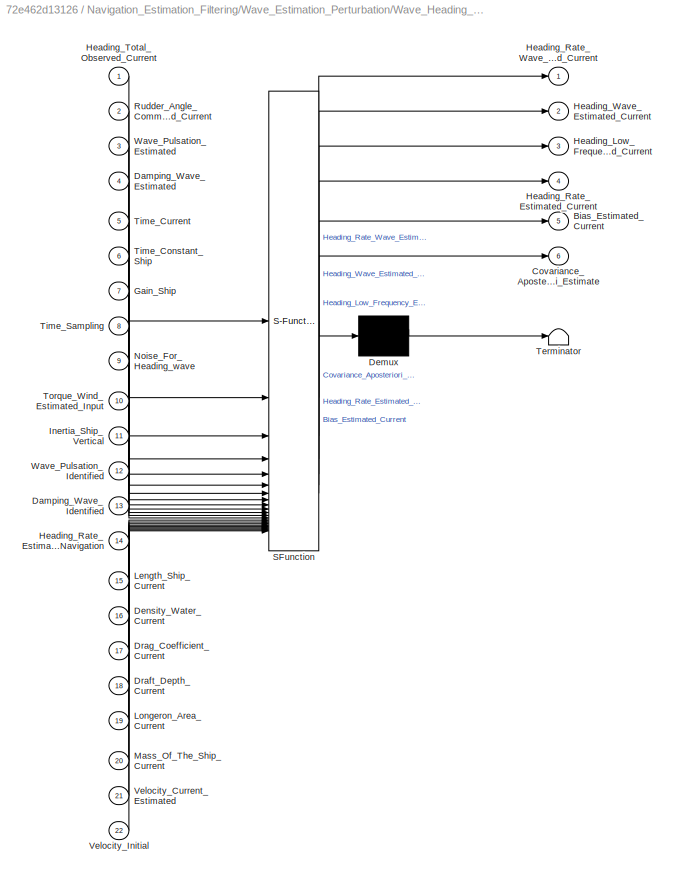
BLOCK [SubSystem] Navigation_Estimation_Filtering/Wave_Estimation_Perturbation/Wave_Heading_Estimation
  ErrorFcn = Stateflow.Translate.translate
  PermitHierarchicalResolution = ExplicitOnly
  SFBlockType = MATLAB Function
  SystemSampleTime = Time_Period_Sampling
  TreatAsAtomicUnit = on
BLOCK [Demux] Navigation_Estimation_Filtering/Wave_Estimation_Perturbation/Wave_Heading_Estimation/ Demux 
  Outputs = 1
BLOCK [S-Function] Navigation_Estimation_Filtering/Wave_Estimation_Perturbation/Wave_Heading_Estimation/ SFunction 
  EnableBusSupport = on
  FunctionName = sf_sfun
  PortCounts = [22 7]
  SFcnIsStateOwnerBlock = off
  SFunctionDeploymentMode = off
  Tag = Stateflow S-Function 5
BLOCK [Terminator] Navigation_Estimation_Filtering/Wave_Estimation_Perturbation/Wave_Heading_Estimation/ Terminator 
BLOCK [Outport] Navigation_Estimation_Filtering/Wave_Estimation_Perturbation/Wave_Heading_Estimation/Bias_Estimated_Current
  Port = 5
BLOCK [Outport] Navigation_Estimation_Filtering/Wave_Estimation_Perturbation/Wave_Heading_Estimation/Covariance_Aposteriori_Estimate
  Port = 6
BLOCK [Inport] Navigation_Estimation_Filtering/Wave_Estimation_Perturbation/Wave_Heading_Estimation/Damping_Wave_Estimated
  Port = 4
BLOCK [Inport] Navigation_Estimation_Filtering/Wave_Estimation_Perturbation/Wave_Heading_Estimation/Damping_Wave_Identified
  Port = 13
BLOCK [Inport] Navigation_Estimation_Filtering/Wave_Estimation_Perturbation/Wave_Heading_Estimation/Density_Water_Current
  Port = 16
BLOCK [Inport] Navigation_Estimation_Filtering/Wave_Estimation_Perturbation/Wave_Heading_Estimation/Draft_Depth_Current
  Port = 18
BLOCK [Inport] Navigation_Estimation_Filtering/Wave_Estimation_Perturbation/Wave_Heading_Estimation/Drag_Coefficient_Current
  Port = 17
BLOCK [Inport] Navigation_Estimation_Filtering/Wave_Estimation_Perturbation/Wave_Heading_Estimation/Gain_Ship
  Port = 7
BLOCK [Outport] Navigation_Estimation_Filtering/Wave_Estimation_Perturbation/Wave_Heading_Estimation/Heading_Low_Frequency_Estimated_Current
  Port = 3
BLOCK [Outport] Navigation_Estimation_Filtering/Wave_Estimation_Perturbation/Wave_Heading_Estimation/Heading_Rate_Estimated_Current
  Port = 4
BLOCK [Inport] Navigation_Estimation_Filtering/Wave_Estimation_Perturbation/Wave_Heading_Estimation/Heading_Rate_Estimated_Current_Navigation
  Port = 14
BLOCK [Outport] Navigation_Estimation_Filtering/Wave_Estimation_Perturbation/Wave_Heading_Estimation/Heading_Rate_Wave_Estimated_Current
BLOCK [Inport] Navigation_Estimation_Filtering/Wave_Estimation_Perturbation/Wave_Heading_Estimation/Heading_Total_Observed_Current
BLOCK [Outport] Navigation_Estimation_Filtering/Wave_Estimation_Perturbation/Wave_Heading_Estimation/Heading_Wave_Estimated_Current
  Port = 2
BLOCK [Inport] Navigation_Estimation_Filtering/Wave_Estimation_Perturbation/Wave_Heading_Estimation/Inertia_Ship_Vertical
  Port = 11
BLOCK [Inport] Navigation_Estimation_Filtering/Wave_Estimation_Perturbation/Wave_Heading_Estimation/Length_Ship_Current
  Port = 15
BLOCK [Inport] Navigation_Estimation_Filtering/Wave_Estimation_Perturbation/Wave_Heading_Estimation/Longeron_Area_Current
  Port = 19
BLOCK [Inport] Navigation_Estimation_Filtering/Wave_Estimation_Perturbation/Wave_Heading_Estimation/Mass_Of_The_Ship_Current
  Port = 20
BLOCK [Inport] Navigation_Estimation_Filtering/Wave_Estimation_Perturbation/Wave_Heading_Estimation/Noise_For_Heading_wave
  Port = 9
BLOCK [Inport] Navigation_Estimation_Filtering/Wave_Estimation_Perturbation/Wave_Heading_Estimation/Rudder_Angle_Commanded_Current
  Port = 2
BLOCK [Inport] Navigation_Estimation_Filtering/Wave_Estimation_Perturbation/Wave_Heading_Estimation/Time_Constant_Ship
  Port = 6
BLOCK [Inport] Navigation_Estimation_Filtering/Wave_Estimation_Perturbation/Wave_Heading_Estimation/Time_Current
  Port = 5
BLOCK [Inport] Navigation_Estimation_Filtering/Wave_Estimation_Perturbation/Wave_Heading_Estimation/Time_Sampling
  Port = 8
BLOCK [Inport] Navigation_Estimation_Filtering/Wave_Estimation_Perturbation/Wave_Heading_Estimation/Torque_Wind_Estimated_Input
  Port = 10
BLOCK [Inport] Navigation_Estimation_Filtering/Wave_Estimation_Perturbation/Wave_Heading_Estimation/Velocity_Current_Estimated
  Port = 21
BLOCK [Inport] Navigation_Estimation_Filtering/Wave_Estimation_Perturbation/Wave_Heading_Estimation/Velocity_Initial
  Port = 22
BLOCK [Inport] Navigation_Estimation_Filtering/Wave_Estimation_Perturbation/Wave_Heading_Estimation/Wave_Pulsation_Estimated
  Port = 3
BLOCK [Inport] Navigation_Estimation_Filtering/Wave_Estimation_Perturbation/Wave_Heading_Estimation/Wave_Pulsation_Identified
  Port = 12
BLOCK [SubSystem] Navigation_Estimation_Filtering/Wave_Estimation_Perturbation/Wave_Identification_Parameters_ARMA
  ErrorFcn = Stateflow.Translate.translate
  PermitHierarchicalResolution = ExplicitOnly
  SFBlockType = MATLAB Function
  SystemSampleTime = Time_Period_Sampling
  TreatAsAtomicUnit = on
BLOCK [Demux] Navigation_Estimation_Filtering/Wave_Estimation_Perturbation/Wave_Identification_Parameters_ARMA/ Demux 
  Outputs = 1
BLOCK [S-Function] Navigation_Estimation_Filtering/Wave_Estimation_Perturbation/Wave_Identification_Parameters_ARMA/ SFunction 
  EnableBusSupport = on
  FunctionName = sf_sfun
  PortCounts = [2 3]
  SFcnIsStateOwnerBlock = off
  SFunctionDeploymentMode = off
  Tag = Stateflow S-Function 9
BLOCK [Terminator] Navigation_Estimation_Filtering/Wave_Estimation_Perturbation/Wave_Identification_Parameters_ARMA/ Terminator 
BLOCK [Inport] Navigation_Estimation_Filtering/Wave_Estimation_Perturbation/Wave_Identification_Parameters_ARMA/Heading_Wave_High_Frequency_Estimated
BLOCK [Inport] Navigation_Estimation_Filtering/Wave_Estimation_Perturbation/Wave_Identification_Parameters_ARMA/Time_Sampling
  Port = 2
BLOCK [Outport] Navigation_Estimation_Filtering/Wave_Estimation_Perturbation/Wave_Identification_Parameters_ARMA/Wave_Damping_Factor_Estimated
  Port = 2
BLOCK [Outport] Navigation_Estimation_Filtering/Wave_Estimation_Perturbation/Wave_Identification_Parameters_ARMA/Wave_Pulsation_Estimated
NET Controller_Actuator/Actuator/Actuator_Control_Saturation:1 -> Controller_Actuator/Actuator/Scope:1, Controller_Actuator/Actuator/Switch:1
LINE Controller_Actuator/Actuator/Actuator_Control_Simplified_Model/Angular_Rate_Saturation:1 -> Controller_Actuator/Actuator/Actuator_Control_Simplified_Model/Integrator:1
NET Controller_Actuator/Actuator/Actuator_Control_Simplified_Model/Integrator:1 -> Controller_Actuator/Actuator/Actuator_Control_Simplified_Model/Rudder_Angle_Saturated:1, Controller_Actuator/Actuator/Actuator_Control_Simplified_Model/Sum1:2
LINE Controller_Actuator/Actuator/Actuator_Control_Simplified_Model/Rudder_Angle_From_Control:1 -> Controller_Actuator/Actuator/Actuator_Control_Simplified_Model/Rudder_Angle_Saturation:1
LINE Controller_Actuator/Actuator/Actuator_Control_Simplified_Model/Rudder_Angle_Saturation:1 -> Controller_Actuator/Actuator/Actuator_Control_Simplified_Model/Sum1:1
LINE Controller_Actuator/Actuator/Actuator_Control_Simplified_Model/Sum1:1 -> Controller_Actuator/Actuator/Actuator_Control_Simplified_Model/Angular_Rate_Saturation:1
NET Controller_Actuator/Actuator/Actuator_Control_Simplified_Model:1 -> Controller_Actuator/Actuator/Scope1:2, Controller_Actuator/Actuator/Switch:3
LINE Controller_Actuator/Actuator/Constant1:1 -> Controller_Actuator/Actuator/Actuator_Control_Saturation:2
LINE Controller_Actuator/Actuator/Constant2:1 -> Controller_Actuator/Actuator/Actuator_Control_Saturation:3
LINE Controller_Actuator/Actuator/Constant3:1 -> Controller_Actuator/Actuator/Actuator_Control_Saturation:4
LINE Controller_Actuator/Actuator/Constant4:1 -> Controller_Actuator/Actuator/Actuator_Control_Saturation:5
LINE Controller_Actuator/Actuator/Constant5:1 -> Controller_Actuator/Actuator/Actuator_Control_Saturation:6
LINE Controller_Actuator/Actuator/Constant:1 -> Controller_Actuator/Actuator/Switch:2
NET Controller_Actuator/Actuator/Rudder_Angle_From_Control:1 -> Controller_Actuator/Actuator/Actuator_Control_Saturation:1, Controller_Actuator/Actuator/Actuator_Control_Simplified_Model:1
NET Controller_Actuator/Actuator/Switch:1 -> Controller_Actuator/Actuator/Goto:1, Controller_Actuator/Actuator/Rudder_Angle_Saturated:1, Controller_Actuator/Actuator/Scope1:1, Controller_Actuator/Actuator/Scope2:1, Controller_Actuator/Actuator/Scope:2
LINE Controller_Actuator/Actuator:1 -> Controller_Actuator/Rudder_Angle_Current:1
LINE Controller_Actuator/Controller/Constant10:1 -> Controller_Actuator/Controller/PDF_Controller:11
LINE Controller_Actuator/Controller/Constant11:1 -> Controller_Actuator/Controller/PDF_Controller:12
LINE Controller_Actuator/Controller/Constant12:1 -> Controller_Actuator/Controller/PDF_Controller:13
LINE Controller_Actuator/Controller/Constant23:1 -> Controller_Actuator/Controller/PDF_Controller:4
LINE Controller_Actuator/Controller/Constant24:1 -> Controller_Actuator/Controller/PDF_Controller:5
NET Controller_Actuator/Controller/Constant25:1 -> Controller_Actuator/Controller/H_Infinity_Controller_Synthetized:3, Controller_Actuator/Controller/PDF_Controller:7
LINE Controller_Actuator/Controller/Constant6:1 -> Controller_Actuator/Controller/PDF_Controller:6
LINE Controller_Actuator/Controller/Constant7:1 -> Controller_Actuator/Controller/PDF_Controller:8
LINE Controller_Actuator/Controller/Constant8:1 -> Controller_Actuator/Controller/PDF_Controller:9
LINE Controller_Actuator/Controller/Constant9:1 -> Controller_Actuator/Controller/PDF_Controller:10
LINE Controller_Actuator/Controller/Constant:1 -> Controller_Actuator/Controller/Manual_Controller_Choice:2
LINE Controller_Actuator/Controller/From:1 -> Controller_Actuator/Controller/PDF_Controller:14
LINE Controller_Actuator/Controller/H_Infinity_Controller_Synthetized:1 -> Controller_Actuator/Controller/Manual_Controller_Choice:1
NET Controller_Actuator/Controller/Heading_Aimed_Current:1 -> Controller_Actuator/Controller/H_Infinity_Controller_Synthetized:1, Controller_Actuator/Controller/PDF_Controller:1
NET Controller_Actuator/Controller/Heading_Observed_Current:1 -> Controller_Actuator/Controller/H_Infinity_Controller_Synthetized:2, Controller_Actuator/Controller/PDF_Controller:2
NET Controller_Actuator/Controller/Manual_Controller_Choice:1 -> Controller_Actuator/Controller/Rudder_Elaborated_Controller:1, Controller_Actuator/Controller/Scope:1
LINE Controller_Actuator/Controller/PDF_Controller:1 -> Controller_Actuator/Controller/Manual_Controller_Choice:3
LINE Controller_Actuator/Controller/Velocity_Current:1 -> Controller_Actuator/Controller/PDF_Controller:3
LINE Controller_Actuator/Controller:1 -> Controller_Actuator/Actuator:1
LINE Controller_Actuator/Heading_Aimed_Current:1 -> Controller_Actuator/Controller:1
LINE Controller_Actuator/Heading_Observed_Current:1 -> Controller_Actuator/Controller:2
LINE Controller_Actuator/Velocity_Current:1 -> Controller_Actuator/Controller:3
NET Controller_Actuator:1 -> Dynamics_Kinematics_Ship_Propagation:1, Navigation_Estimation_Filtering:2
LINE Dynamics_Kinematics_Ship_Propagation/Dynamics_Ship_Heading_Rudder/Constant13:1 -> Dynamics_Kinematics_Ship_Propagation/Dynamics_Ship_Heading_Rudder/Ship_LPV_Velocity:7
LINE Dynamics_Kinematics_Ship_Propagation/Dynamics_Ship_Heading_Rudder/Constant14:1 -> Dynamics_Kinematics_Ship_Propagation/Dynamics_Ship_Heading_Rudder/Ship_LPV_Heading_On_Rudder_First_Order:2
LINE Dynamics_Kinematics_Ship_Propagation/Dynamics_Ship_Heading_Rudder/Constant15:1 -> Dynamics_Kinematics_Ship_Propagation/Dynamics_Ship_Heading_Rudder/Ship_LPV_Heading_On_Rudder_First_Order:5
LINE Dynamics_Kinematics_Ship_Propagation/Dynamics_Ship_Heading_Rudder/Constant16:1 -> Dynamics_Kinematics_Ship_Propagation/Dynamics_Ship_Heading_Rudder/Ship_LPV_Heading_On_Rudder_First_Order:4
LINE Dynamics_Kinematics_Ship_Propagation/Dynamics_Ship_Heading_Rudder/Constant1:1 -> Dynamics_Kinematics_Ship_Propagation/Dynamics_Ship_Heading_Rudder/Ship_LPV_Velocity:2
LINE Dynamics_Kinematics_Ship_Propagation/Dynamics_Ship_Heading_Rudder/Constant2:1 -> Dynamics_Kinematics_Ship_Propagation/Dynamics_Ship_Heading_Rudder/Ship_LPV_Velocity:3
LINE Dynamics_Kinematics_Ship_Propagation/Dynamics_Ship_Heading_Rudder/Constant3:1 -> Dynamics_Kinematics_Ship_Propagation/Dynamics_Ship_Heading_Rudder/Ship_LPV_Velocity:4
LINE Dynamics_Kinematics_Ship_Propagation/Dynamics_Ship_Heading_Rudder/Constant4:1 -> Dynamics_Kinematics_Ship_Propagation/Dynamics_Ship_Heading_Rudder/Ship_LPV_Velocity:5
LINE Dynamics_Kinematics_Ship_Propagation/Dynamics_Ship_Heading_Rudder/Constant5:1 -> Dynamics_Kinematics_Ship_Propagation/Dynamics_Ship_Heading_Rudder/Ship_LPV_Velocity:6
NET Dynamics_Kinematics_Ship_Propagation/Dynamics_Ship_Heading_Rudder/Derivative:1 -> Dynamics_Kinematics_Ship_Propagation/Dynamics_Ship_Heading_Rudder/Goto:1, Dynamics_Kinematics_Ship_Propagation/Dynamics_Ship_Heading_Rudder/Scope6:1
LINE Dynamics_Kinematics_Ship_Propagation/Dynamics_Ship_Heading_Rudder/From1:1 -> Dynamics_Kinematics_Ship_Propagation/Dynamics_Ship_Heading_Rudder/Ship_LPV_Heading_On_Rudder_First_Order:3
LINE Dynamics_Kinematics_Ship_Propagation/Dynamics_Ship_Heading_Rudder/From2:1 -> Dynamics_Kinematics_Ship_Propagation/Dynamics_Ship_Heading_Rudder/Ship_LPV_Heading_On_Rudder_First_Order:6
LINE Dynamics_Kinematics_Ship_Propagation/Dynamics_Ship_Heading_Rudder/From:1 -> Dynamics_Kinematics_Ship_Propagation/Dynamics_Ship_Heading_Rudder/Ship_LPV_Velocity:8
LINE Dynamics_Kinematics_Ship_Propagation/Dynamics_Ship_Heading_Rudder/Heading_Wave_Perturbation:1 -> Dynamics_Kinematics_Ship_Propagation/Dynamics_Ship_Heading_Rudder/Sum:1
LINE Dynamics_Kinematics_Ship_Propagation/Dynamics_Ship_Heading_Rudder/Rudder_Angle_Current:1 -> Dynamics_Kinematics_Ship_Propagation/Dynamics_Ship_Heading_Rudder/Ship_LPV_Heading_On_Rudder_First_Order:1
NET Dynamics_Kinematics_Ship_Propagation/Dynamics_Ship_Heading_Rudder/Ship_LPV_Heading_On_Rudder_First_Order:1 -> Dynamics_Kinematics_Ship_Propagation/Dynamics_Ship_Heading_Rudder/Derivative:1, Dynamics_Kinematics_Ship_Propagation/Dynamics_Ship_Heading_Rudder/Sum:2
LINE Dynamics_Kinematics_Ship_Propagation/Dynamics_Ship_Heading_Rudder/Ship_LPV_Velocity:1 -> Dynamics_Kinematics_Ship_Propagation/Dynamics_Ship_Heading_Rudder/Scope:1
LINE Dynamics_Kinematics_Ship_Propagation/Dynamics_Ship_Heading_Rudder/Ship_LPV_Velocity:2 -> Dynamics_Kinematics_Ship_Propagation/Dynamics_Ship_Heading_Rudder/Scope1:1
LINE Dynamics_Kinematics_Ship_Propagation/Dynamics_Ship_Heading_Rudder/Ship_LPV_Velocity:3 -> Dynamics_Kinematics_Ship_Propagation/Dynamics_Ship_Heading_Rudder/Goto2:1
LINE Dynamics_Kinematics_Ship_Propagation/Dynamics_Ship_Heading_Rudder/Ship_LPV_Velocity:4 -> Dynamics_Kinematics_Ship_Propagation/Dynamics_Ship_Heading_Rudder/Goto1:1
LINE Dynamics_Kinematics_Ship_Propagation/Dynamics_Ship_Heading_Rudder/Ship_LPV_Velocity:5 -> Dynamics_Kinematics_Ship_Propagation/Dynamics_Ship_Heading_Rudder/Scope2:1
LINE Dynamics_Kinematics_Ship_Propagation/Dynamics_Ship_Heading_Rudder/Ship_LPV_Velocity:6 -> Dynamics_Kinematics_Ship_Propagation/Dynamics_Ship_Heading_Rudder/Scope3:1
LINE Dynamics_Kinematics_Ship_Propagation/Dynamics_Ship_Heading_Rudder/Ship_LPV_Velocity:7 -> Dynamics_Kinematics_Ship_Propagation/Dynamics_Ship_Heading_Rudder/Scope4:1
LINE Dynamics_Kinematics_Ship_Propagation/Dynamics_Ship_Heading_Rudder/Ship_LPV_Velocity:8 -> Dynamics_Kinematics_Ship_Propagation/Dynamics_Ship_Heading_Rudder/Scope5:1
LINE Dynamics_Kinematics_Ship_Propagation/Dynamics_Ship_Heading_Rudder/Sum:1 -> Dynamics_Kinematics_Ship_Propagation/Dynamics_Ship_Heading_Rudder/Heading_Total:1
LINE Dynamics_Kinematics_Ship_Propagation/Dynamics_Ship_Heading_Rudder/Velocity_Current:1 -> Dynamics_Kinematics_Ship_Propagation/Dynamics_Ship_Heading_Rudder/Ship_LPV_Velocity:1
NET Dynamics_Kinematics_Ship_Propagation/Dynamics_Ship_Heading_Rudder:1 -> Dynamics_Kinematics_Ship_Propagation/Goto:1, Dynamics_Kinematics_Ship_Propagation/Heading_Total_Current:1, Dynamics_Kinematics_Ship_Propagation/Kinematics_Ship_Propagation:1
LINE Dynamics_Kinematics_Ship_Propagation/Heading_Wave_Perturbation:1 -> Dynamics_Kinematics_Ship_Propagation/Dynamics_Ship_Heading_Rudder:3
LINE Dynamics_Kinematics_Ship_Propagation/Kinematics_Ship_Propagation/Derivative1:1 -> Dynamics_Kinematics_Ship_Propagation/Kinematics_Ship_Propagation/Acceleration_Y_Current:1
LINE Dynamics_Kinematics_Ship_Propagation/Kinematics_Ship_Propagation/Derivative:1 -> Dynamics_Kinematics_Ship_Propagation/Kinematics_Ship_Propagation/Acceleration_X_Current:1
NET Dynamics_Kinematics_Ship_Propagation/Kinematics_Ship_Propagation/Heading_Total_Current:1 -> Dynamics_Kinematics_Ship_Propagation/Kinematics_Ship_Propagation/Trigonometric Function1:1, Dynamics_Kinematics_Ship_Propagation/Kinematics_Ship_Propagation/Trigonometric Function:1
NET Dynamics_Kinematics_Ship_Propagation/Kinematics_Ship_Propagation/Integrator1:1 -> Dynamics_Kinematics_Ship_Propagation/Kinematics_Ship_Propagation/Position_X_Current:1, Dynamics_Kinematics_Ship_Propagation/Kinematics_Ship_Propagation/Scope:1
NET Dynamics_Kinematics_Ship_Propagation/Kinematics_Ship_Propagation/Integrator2:1 -> Dynamics_Kinematics_Ship_Propagation/Kinematics_Ship_Propagation/Position_Y_Current:1, Dynamics_Kinematics_Ship_Propagation/Kinematics_Ship_Propagation/Scope1:1
NET Dynamics_Kinematics_Ship_Propagation/Kinematics_Ship_Propagation/Product1:1 -> Dynamics_Kinematics_Ship_Propagation/Kinematics_Ship_Propagation/Derivative1:1, Dynamics_Kinematics_Ship_Propagation/Kinematics_Ship_Propagation/Integrator2:1, Dynamics_Kinematics_Ship_Propagation/Kinematics_Ship_Propagation/Square1:1, Dynamics_Kinematics_Ship_Propagation/Kinematics_Ship_Propagation/To Workspace1:1, Dynamics_Kinematics_Ship_Propagation/Kinematics_Ship_Propagation/Velocity_Y_Current:1
NET Dynamics_Kinematics_Ship_Propagation/Kinematics_Ship_Propagation/Product:1 -> Dynamics_Kinematics_Ship_Propagation/Kinematics_Ship_Propagation/Derivative:1, Dynamics_Kinematics_Ship_Propagation/Kinematics_Ship_Propagation/Integrator1:1, Dynamics_Kinematics_Ship_Propagation/Kinematics_Ship_Propagation/Square:1, Dynamics_Kinematics_Ship_Propagation/Kinematics_Ship_Propagation/To Workspace:1, Dynamics_Kinematics_Ship_Propagation/Kinematics_Ship_Propagation/Velocity_X_Current:1
LINE Dynamics_Kinematics_Ship_Propagation/Kinematics_Ship_Propagation/Sqrt:1 -> Dynamics_Kinematics_Ship_Propagation/Kinematics_Ship_Propagation/Velocity_Ship_Norm_Current:1
LINE Dynamics_Kinematics_Ship_Propagation/Kinematics_Ship_Propagation/Square1:1 -> Dynamics_Kinematics_Ship_Propagation/Kinematics_Ship_Propagation/Sum:2
LINE Dynamics_Kinematics_Ship_Propagation/Kinematics_Ship_Propagation/Square:1 -> Dynamics_Kinematics_Ship_Propagation/Kinematics_Ship_Propagation/Sum:1
LINE Dynamics_Kinematics_Ship_Propagation/Kinematics_Ship_Propagation/Sum:1 -> Dynamics_Kinematics_Ship_Propagation/Kinematics_Ship_Propagation/Sqrt:1
LINE Dynamics_Kinematics_Ship_Propagation/Kinematics_Ship_Propagation/Trigonometric Function1:1 -> Dynamics_Kinematics_Ship_Propagation/Kinematics_Ship_Propagation/Product1:2
LINE Dynamics_Kinematics_Ship_Propagation/Kinematics_Ship_Propagation/Trigonometric Function:1 -> Dynamics_Kinematics_Ship_Propagation/Kinematics_Ship_Propagation/Product:2
NET Dynamics_Kinematics_Ship_Propagation/Kinematics_Ship_Propagation/Velocity_Ship_Current:1 -> Dynamics_Kinematics_Ship_Propagation/Kinematics_Ship_Propagation/Product1:1, Dynamics_Kinematics_Ship_Propagation/Kinematics_Ship_Propagation/Product:1
LINE Dynamics_Kinematics_Ship_Propagation/Kinematics_Ship_Propagation:1 -> Dynamics_Kinematics_Ship_Propagation/Position_X_Current:1
LINE Dynamics_Kinematics_Ship_Propagation/Kinematics_Ship_Propagation:2 -> Dynamics_Kinematics_Ship_Propagation/Velocity_Ship_Norm_Current:1
LINE Dynamics_Kinematics_Ship_Propagation/Kinematics_Ship_Propagation:3 -> Dynamics_Kinematics_Ship_Propagation/Position_Y_Current:1
LINE Dynamics_Kinematics_Ship_Propagation/Rudder_Angle_Current:1 -> Dynamics_Kinematics_Ship_Propagation/Dynamics_Ship_Heading_Rudder:1
NET Dynamics_Kinematics_Ship_Propagation/Velocity_Current:1 -> Dynamics_Kinematics_Ship_Propagation/Dynamics_Ship_Heading_Rudder:2, Dynamics_Kinematics_Ship_Propagation/Kinematics_Ship_Propagation:2
LINE Dynamics_Kinematics_Ship_Propagation:1 -> Navigation_Estimation_Filtering:1
LINE Dynamics_Kinematics_Ship_Propagation:2 -> Navigation_Estimation_Filtering:3
LINE Dynamics_Kinematics_Ship_Propagation:3 -> Navigation_Estimation_Filtering:4
LINE Dynamics_Kinematics_Ship_Propagation:4 -> Navigation_Estimation_Filtering:5
NET Environment/Gain:1 -> Environment/Goto:1, Environment/Heading_Wave_Perturbation:1
NET Environment/LTI System2:1 -> Environment/Gain:1, Environment/Radians to Degrees3:1, Environment/Scope18:1
LINE Environment/Radians to Degrees3:1 -> Environment/Scope43:1
LINE Environment/Sine Wave:1 -> Environment/Terminator:1
LINE Environment/Uniform Random Number1:1 -> Environment/LTI System2:1
LINE Environment:1 -> Dynamics_Kinematics_Ship_Propagation:3
LINE Guidance_Integration_Line_Of_Sight/Clock:1 -> Guidance_Integration_Line_Of_Sight/Guidance_Algorithm:7
LINE Guidance_Integration_Line_Of_Sight/Constant18:1 -> Guidance_Integration_Line_Of_Sight/Guidance_Algorithm:1
NET Guidance_Integration_Line_Of_Sight/Constant1:1 -> Guidance_Integration_Line_Of_Sight/Goto2:1, Guidance_Integration_Line_Of_Sight/Guidance_Algorithm:5
NET Guidance_Integration_Line_Of_Sight/Constant21:1 -> Guidance_Integration_Line_Of_Sight/Guidance_Algorithm:4, Guidance_Integration_Line_Of_Sight/Guidance_Reference_Model:2
NET Guidance_Integration_Line_Of_Sight/Constant2:1 -> Guidance_Integration_Line_Of_Sight/Goto3:1, Guidance_Integration_Line_Of_Sight/Guidance_Algorithm:6
LINE Guidance_Integration_Line_Of_Sight/Guidance_Algorithm:1 -> Guidance_Integration_Line_Of_Sight/Guidance_Reference_Model:1
LINE Guidance_Integration_Line_Of_Sight/Guidance_Algorithm:2 -> Guidance_Integration_Line_Of_Sight/Scope:1
NET Guidance_Integration_Line_Of_Sight/Guidance_Reference_Model:1 -> Guidance_Integration_Line_Of_Sight/Goto1:1, Guidance_Integration_Line_Of_Sight/Heading_Desired_Current:1, Guidance_Integration_Line_Of_Sight/Scope2:1
NET Guidance_Integration_Line_Of_Sight/Guidance_Reference_Model:2 -> Guidance_Integration_Line_Of_Sight/Goto5:1, Guidance_Integration_Line_Of_Sight/Scope1:1
NET Guidance_Integration_Line_Of_Sight/Guidance_Reference_Model:3 -> Guidance_Integration_Line_Of_Sight/Goto4:1, Guidance_Integration_Line_Of_Sight/Scope4:1
LINE Guidance_Integration_Line_Of_Sight/Position_X_Ship_Current:1 -> Guidance_Integration_Line_Of_Sight/Guidance_Algorithm:2
LINE Guidance_Integration_Line_Of_Sight/Position_Y_Ship_Current:1 -> Guidance_Integration_Line_Of_Sight/Guidance_Algorithm:3
NET Guidance_Integration_Line_Of_Sight/Velocity:1 -> Guidance_Integration_Line_Of_Sight/Goto:1, Guidance_Integration_Line_Of_Sight/Scope3:1
LINE Guidance_Integration_Line_Of_Sight:1 -> Controller_Actuator:1
LINE Navigation_Estimation_Filtering/Constant25:1 -> Navigation_Estimation_Filtering/Heading_Sensor_Fusion:6
LINE Navigation_Estimation_Filtering/Constant50:1 -> Navigation_Estimation_Filtering/Heading_Sensor_Fusion:8
LINE Navigation_Estimation_Filtering/Constant51:1 -> Navigation_Estimation_Filtering/Heading_Sensor_Fusion:13
LINE Navigation_Estimation_Filtering/Constant52:1 -> Navigation_Estimation_Filtering/Heading_Sensor_Fusion:9
LINE Navigation_Estimation_Filtering/Constant53:1 -> Navigation_Estimation_Filtering/Heading_Sensor_Fusion:10
LINE Navigation_Estimation_Filtering/Constant54:1 -> Navigation_Estimation_Filtering/Heading_Sensor_Fusion:11
LINE Navigation_Estimation_Filtering/Constant55:1 -> Navigation_Estimation_Filtering/Heading_Sensor_Fusion:12
LINE Navigation_Estimation_Filtering/Constant:1 -> Navigation_Estimation_Filtering/Scope5:2
LINE Navigation_Estimation_Filtering/Delay1:1 -> Navigation_Estimation_Filtering/Position_Ship_X_Current_Filtered:1
LINE Navigation_Estimation_Filtering/Delay2:1 -> Navigation_Estimation_Filtering/Position_Ship_Y_Current_Filtered:1
LINE Navigation_Estimation_Filtering/Delay3:1 -> Navigation_Estimation_Filtering/Velocity_Current_Estimated:1
LINE Navigation_Estimation_Filtering/Delay:1 -> Navigation_Estimation_Filtering/Heading_Ship:1
LINE Navigation_Estimation_Filtering/From10:1 -> Navigation_Estimation_Filtering/Heading_Sensor_Fusion:14
LINE Navigation_Estimation_Filtering/From11:1 -> Navigation_Estimation_Filtering/Heading_Sensor_Fusion:15
LINE Navigation_Estimation_Filtering/From12:1 -> Navigation_Estimation_Filtering/Heading_Sensor_Fusion:16
LINE Navigation_Estimation_Filtering/From1:1 -> Navigation_Estimation_Filtering/Wave_Estimation_Perturbation:2
LINE Navigation_Estimation_Filtering/From2:1 -> Navigation_Estimation_Filtering/Wave_Estimation_Perturbation:3
LINE Navigation_Estimation_Filtering/From3:1 -> Navigation_Estimation_Filtering/Wave_Estimation_Perturbation:4
LINE Navigation_Estimation_Filtering/From4:1 -> Navigation_Estimation_Filtering/Delay3:1
LINE Navigation_Estimation_Filtering/From5:1 -> Navigation_Estimation_Filtering/Scope2:1
LINE Navigation_Estimation_Filtering/From6:1 -> Navigation_Estimation_Filtering/Scope3:1
LINE Navigation_Estimation_Filtering/From7:1 -> Navigation_Estimation_Filtering/Scope4:1
LINE Navigation_Estimation_Filtering/From8:1 -> Navigation_Estimation_Filtering/Scope4:2
LINE Navigation_Estimation_Filtering/From9:1 -> Navigation_Estimation_Filtering/Scope5:1
LINE Navigation_Estimation_Filtering/From:1 -> Navigation_Estimation_Filtering/Wave_Estimation_Perturbation:1
NET Navigation_Estimation_Filtering/Heading_Sensor_Fusion:1 -> Navigation_Estimation_Filtering/Delay1:1, Navigation_Estimation_Filtering/Scope2:2, Navigation_Estimation_Filtering/To Workspace:1
NET Navigation_Estimation_Filtering/Heading_Sensor_Fusion:2 -> Navigation_Estimation_Filtering/Delay2:1, Navigation_Estimation_Filtering/Scope3:2, Navigation_Estimation_Filtering/To Workspace1:1
NET Navigation_Estimation_Filtering/Heading_Sensor_Fusion:3 -> Navigation_Estimation_Filtering/Goto1:1, Navigation_Estimation_Filtering/Scope4:3, Navigation_Estimation_Filtering/To Workspace2:1
LINE Navigation_Estimation_Filtering/Heading_Sensor_Fusion:4 -> Navigation_Estimation_Filtering/Goto2:1
LINE Navigation_Estimation_Filtering/Heading_Sensor_Fusion:5 -> Navigation_Estimation_Filtering/Scope:1
NET Navigation_Estimation_Filtering/Heading_Sensor_Fusion:6 -> Navigation_Estimation_Filtering/Goto3:1, Navigation_Estimation_Filtering/Scope5:3
LINE Navigation_Estimation_Filtering/Heading_Total_Ship:1 -> Navigation_Estimation_Filtering/Sensor_Models:1
LINE Navigation_Estimation_Filtering/Position_X_Ship:1 -> Navigation_Estimation_Filtering/Sensor_Models:2
LINE Navigation_Estimation_Filtering/Position_Y_Ship:1 -> Navigation_Estimation_Filtering/Sensor_Models:4
NET Navigation_Estimation_Filtering/Rudder_Angle_Commanded_Current:1 -> Navigation_Estimation_Filtering/Goto:1, Navigation_Estimation_Filtering/Heading_Sensor_Fusion:7
LINE Navigation_Estimation_Filtering/Sensor_Models/Constant44:1 -> Navigation_Estimation_Filtering/Sensor_Models/Sum3:2
LINE Navigation_Estimation_Filtering/Sensor_Models/Heading_Noise_GPS:1 -> Navigation_Estimation_Filtering/Sensor_Models/Sum2:2
LINE Navigation_Estimation_Filtering/Sensor_Models/Heading_Noise_Magnetometer:1 -> Navigation_Estimation_Filtering/Sensor_Models/Sum5:2
NET Navigation_Estimation_Filtering/Sensor_Models/Heading_Total_Ship:1 -> Navigation_Estimation_Filtering/Sensor_Models/Sum2:1, Navigation_Estimation_Filtering/Sensor_Models/Sum5:1
LINE Navigation_Estimation_Filtering/Sensor_Models/Position_X_Ship:1 -> Navigation_Estimation_Filtering/Sensor_Models/Sum6:1
LINE Navigation_Estimation_Filtering/Sensor_Models/Position_X_Ship_Noise_GPS:1 -> Navigation_Estimation_Filtering/Sensor_Models/Sum6:2
LINE Navigation_Estimation_Filtering/Sensor_Models/Position_Y_Ship:1 -> Navigation_Estimation_Filtering/Sensor_Models/Sum1:1
LINE Navigation_Estimation_Filtering/Sensor_Models/Position_Y_Ship_Noise_GPS:1 -> Navigation_Estimation_Filtering/Sensor_Models/Sum1:2
NET Navigation_Estimation_Filtering/Sensor_Models/Sum1:1 -> Navigation_Estimation_Filtering/Sensor_Models/Goto1:1, Navigation_Estimation_Filtering/Sensor_Models/Position_Ship_Y_GPS_Noisy:1
NET Navigation_Estimation_Filtering/Sensor_Models/Sum2:1 -> Navigation_Estimation_Filtering/Sensor_Models/Goto2:1, Navigation_Estimation_Filtering/Sensor_Models/Heading_Ship_GPS_Noisy:1, Navigation_Estimation_Filtering/Sensor_Models/To Workspace:1
NET Navigation_Estimation_Filtering/Sensor_Models/Sum3:1 -> Navigation_Estimation_Filtering/Sensor_Models/Goto3:1, Navigation_Estimation_Filtering/Sensor_Models/Heading_Ship_Compass:1, Navigation_Estimation_Filtering/Sensor_Models/To Workspace1:1
LINE Navigation_Estimation_Filtering/Sensor_Models/Sum4:1 -> Navigation_Estimation_Filtering/Sensor_Models/Sum:1
LINE Navigation_Estimation_Filtering/Sensor_Models/Sum5:1 -> Navigation_Estimation_Filtering/Sensor_Models/Sum3:1
NET Navigation_Estimation_Filtering/Sensor_Models/Sum6:1 -> Navigation_Estimation_Filtering/Sensor_Models/Goto:1, Navigation_Estimation_Filtering/Sensor_Models/Position_Ship_X_GPS_Noisy:1
NET Navigation_Estimation_Filtering/Sensor_Models/Sum:1 -> Navigation_Estimation_Filtering/Sensor_Models/Goto4:1, Navigation_Estimation_Filtering/Sensor_Models/Velocity_Ship_GPS_Noisy:1
LINE Navigation_Estimation_Filtering/Sensor_Models/Velocity_Increment:1 -> Navigation_Estimation_Filtering/Sensor_Models/Sum4:2
LINE Navigation_Estimation_Filtering/Sensor_Models/Velocity_Norm_Ship:1 -> Navigation_Estimation_Filtering/Sensor_Models/Sum4:1
LINE Navigation_Estimation_Filtering/Sensor_Models/Velocity_Ship_GPS:1 -> Navigation_Estimation_Filtering/Sensor_Models/Sum:2
LINE Navigation_Estimation_Filtering/Sensor_Models:1 -> Navigation_Estimation_Filtering/Heading_Sensor_Fusion:1
LINE Navigation_Estimation_Filtering/Sensor_Models:2 -> Navigation_Estimation_Filtering/Heading_Sensor_Fusion:2
LINE Navigation_Estimation_Filtering/Sensor_Models:3 -> Navigation_Estimation_Filtering/Heading_Sensor_Fusion:3
LINE Navigation_Estimation_Filtering/Sensor_Models:4 -> Navigation_Estimation_Filtering/Heading_Sensor_Fusion:4
LINE Navigation_Estimation_Filtering/Sensor_Models:5 -> Navigation_Estimation_Filtering/Heading_Sensor_Fusion:5
LINE Navigation_Estimation_Filtering/Velocity_Norm_Ship:1 -> Navigation_Estimation_Filtering/Sensor_Models:3
LINE Navigation_Estimation_Filtering/Wave_Estimation_Perturbation/Clock:1 -> Navigation_Estimation_Filtering/Wave_Estimation_Perturbation/Wave_Heading_Estimation:5
LINE Navigation_Estimation_Filtering/Wave_Estimation_Perturbation/Constant17:1 -> Navigation_Estimation_Filtering/Wave_Estimation_Perturbation/Wave_Heading_Estimation:3
LINE Navigation_Estimation_Filtering/Wave_Estimation_Perturbation/Constant1:1 -> Navigation_Estimation_Filtering/Wave_Estimation_Perturbation/Wave_Heading_Estimation:15
LINE Navigation_Estimation_Filtering/Wave_Estimation_Perturbation/Constant22:1 -> Navigation_Estimation_Filtering/Wave_Estimation_Perturbation/Wave_Heading_Estimation:4
LINE Navigation_Estimation_Filtering/Wave_Estimation_Perturbation/Constant29:1 -> Navigation_Estimation_Filtering/Wave_Estimation_Perturbation/Wave_Heading_Estimation:6
LINE Navigation_Estimation_Filtering/Wave_Estimation_Perturbation/Constant2:1 -> Navigation_Estimation_Filtering/Wave_Estimation_Perturbation/Wave_Heading_Estimation:20
LINE Navigation_Estimation_Filtering/Wave_Estimation_Perturbation/Constant30:1 -> Navigation_Estimation_Filtering/Wave_Estimation_Perturbation/Wave_Heading_Estimation:7
LINE Navigation_Estimation_Filtering/Wave_Estimation_Perturbation/Constant33:1 -> Navigation_Estimation_Filtering/Wave_Estimation_Perturbation/Wave_Heading_Estimation:11
LINE Navigation_Estimation_Filtering/Wave_Estimation_Perturbation/Constant37:1 -> Navigation_Estimation_Filtering/Wave_Estimation_Perturbation/Wave_Heading_Estimation:10
LINE Navigation_Estimation_Filtering/Wave_Estimation_Perturbation/Constant3:1 -> Navigation_Estimation_Filtering/Wave_Estimation_Perturbation/Wave_Heading_Estimation:16
LINE Navigation_Estimation_Filtering/Wave_Estimation_Perturbation/Constant4:1 -> Navigation_Estimation_Filtering/Wave_Estimation_Perturbation/Wave_Heading_Estimation:17
LINE Navigation_Estimation_Filtering/Wave_Estimation_Perturbation/Constant5:1 -> Navigation_Estimation_Filtering/Wave_Estimation_Perturbation/Wave_Heading_Estimation:18
LINE Navigation_Estimation_Filtering/Wave_Estimation_Perturbation/Constant6:1 -> Navigation_Estimation_Filtering/Wave_Estimation_Perturbation/Wave_Heading_Estimation:19
LINE Navigation_Estimation_Filtering/Wave_Estimation_Perturbation/Constant7:1 -> Navigation_Estimation_Filtering/Wave_Estimation_Perturbation/Wave_Heading_Estimation:9
LINE Navigation_Estimation_Filtering/Wave_Estimation_Perturbation/Constant8:1 -> Navigation_Estimation_Filtering/Wave_Estimation_Perturbation/Wave_Heading_Estimation:8
NET Navigation_Estimation_Filtering/Wave_Estimation_Perturbation/Constant:1 -> Navigation_Estimation_Filtering/Wave_Estimation_Perturbation/High_Pass_Filter:2, Navigation_Estimation_Filtering/Wave_Estimation_Perturbation/Wave_Identification_Parameters_ARMA:2
LINE Navigation_Estimation_Filtering/Wave_Estimation_Perturbation/Delay:1 -> Navigation_Estimation_Filtering/Wave_Estimation_Perturbation/Wave_Heading_Estimation:1
NET Navigation_Estimation_Filtering/Wave_Estimation_Perturbation/From1:1 -> Navigation_Estimation_Filtering/Wave_Estimation_Perturbation/Scope2:1, Navigation_Estimation_Filtering/Wave_Estimation_Perturbation/To Workspace2:1
LINE Navigation_Estimation_Filtering/Wave_Estimation_Perturbation/From2:1 -> Navigation_Estimation_Filtering/Wave_Estimation_Perturbation/Scope5:1
LINE Navigation_Estimation_Filtering/Wave_Estimation_Perturbation/From3:1 -> Navigation_Estimation_Filtering/Wave_Estimation_Perturbation/Scope5:2
LINE Navigation_Estimation_Filtering/Wave_Estimation_Perturbation/From4:1 -> Navigation_Estimation_Filtering/Wave_Estimation_Perturbation/Scope8:1
LINE Navigation_Estimation_Filtering/Wave_Estimation_Perturbation/From:1 -> Navigation_Estimation_Filtering/Wave_Estimation_Perturbation/Wave_Heading_Estimation:22
LINE Navigation_Estimation_Filtering/Wave_Estimation_Perturbation/Heading_Rate_Estimated_Current_Navigation:1 -> Navigation_Estimation_Filtering/Wave_Estimation_Perturbation/Wave_Heading_Estimation:14
NET Navigation_Estimation_Filtering/Wave_Estimation_Perturbation/Heading_Unfiltered_Input:1 -> Navigation_Estimation_Filtering/Wave_Estimation_Perturbation/Delay:1, Navigation_Estimation_Filtering/Wave_Estimation_Perturbation/High_Pass_Filter:1, Navigation_Estimation_Filtering/Wave_Estimation_Perturbation/Scope9:1
NET Navigation_Estimation_Filtering/Wave_Estimation_Perturbation/High_Pass_Filter:1 -> Navigation_Estimation_Filtering/Wave_Estimation_Perturbation/Scope9:2, Navigation_Estimation_Filtering/Wave_Estimation_Perturbation/Wave_Identification_Parameters_ARMA:1
LINE Navigation_Estimation_Filtering/Wave_Estimation_Perturbation/Rudder_Angle_Commanded_Current:1 -> Navigation_Estimation_Filtering/Wave_Estimation_Perturbation/Wave_Heading_Estimation:2
LINE Navigation_Estimation_Filtering/Wave_Estimation_Perturbation/Velocity_Current_Estimated:1 -> Navigation_Estimation_Filtering/Wave_Estimation_Perturbation/Wave_Heading_Estimation:21
LINE Navigation_Estimation_Filtering/Wave_Estimation_Perturbation/Wave_Heading_Estimation:1 -> Navigation_Estimation_Filtering/Wave_Estimation_Perturbation/Scope:1
NET Navigation_Estimation_Filtering/Wave_Estimation_Perturbation/Wave_Heading_Estimation:2 -> Navigation_Estimation_Filtering/Wave_Estimation_Perturbation/Scope2:2, Navigation_Estimation_Filtering/Wave_Estimation_Perturbation/To Workspace3:1
NET Navigation_Estimation_Filtering/Wave_Estimation_Perturbation/Wave_Heading_Estimation:3 -> Navigation_Estimation_Filtering/Wave_Estimation_Perturbation/Heading_Low_Frequency_Estimated_Current:1, Navigation_Estimation_Filtering/Wave_Estimation_Perturbation/Scope5:3, Navigation_Estimation_Filtering/Wave_Estimation_Perturbation/Scope7:1, Navigation_Estimation_Filtering/Wave_Estimation_Perturbation/Scope8:2
LINE Navigation_Estimation_Filtering/Wave_Estimation_Perturbation/Wave_Heading_Estimation:4 -> Navigation_Estimation_Filtering/Wave_Estimation_Perturbation/Heading_Rate_Estimated_Current:1
LINE Navigation_Estimation_Filtering/Wave_Estimation_Perturbation/Wave_Heading_Estimation:5 -> Navigation_Estimation_Filtering/Wave_Estimation_Perturbation/Scope3:1
LINE Navigation_Estimation_Filtering/Wave_Estimation_Perturbation/Wave_Heading_Estimation:6 -> Navigation_Estimation_Filtering/Wave_Estimation_Perturbation/Scope4:1
NET Navigation_Estimation_Filtering/Wave_Estimation_Perturbation/Wave_Identification_Parameters_ARMA:1 -> Navigation_Estimation_Filtering/Wave_Estimation_Perturbation/Scope6:1, Navigation_Estimation_Filtering/Wave_Estimation_Perturbation/To Workspace:1, Navigation_Estimation_Filtering/Wave_Estimation_Perturbation/Wave_Heading_Estimation:12
NET Navigation_Estimation_Filtering/Wave_Estimation_Perturbation/Wave_Identification_Parameters_ARMA:2 -> Navigation_Estimation_Filtering/Wave_Estimation_Perturbation/Scope1:1, Navigation_Estimation_Filtering/Wave_Estimation_Perturbation/To Workspace1:1, Navigation_Estimation_Filtering/Wave_Estimation_Perturbation/Wave_Heading_Estimation:13
NET Navigation_Estimation_Filtering/Wave_Estimation_Perturbation:1 -> Navigation_Estimation_Filtering/Delay:1, Navigation_Estimation_Filtering/To Workspace3:1
LINE Navigation_Estimation_Filtering/Wave_Estimation_Perturbation:2 -> Navigation_Estimation_Filtering/Scope1:1
LINE Navigation_Estimation_Filtering:1 -> Guidance_Integration_Line_Of_Sight:1
LINE Navigation_Estimation_Filtering:2 -> Guidance_Integration_Line_Of_Sight:2
NET Navigation_Estimation_Filtering:3 -> Controller_Actuator:3, Dynamics_Kinematics_Ship_Propagation:2
LINE Navigation_Estimation_Filtering:4 -> Controller_Actuator:2
note: NET lines group one-source signal fan-out (src -> all destinations, sorted); 1:1 wires keep LINE
CHART Controller_Actuator/Actuator/Actuator_Control_Saturation states=1 transitions=1
  STATE_LABEL 'eML_blk_kernel()'
  STATE_LABEL 'SCRIPT:\nfunction Rudder_Commanded_Elaborated_Current = Linear_Actuator_First_Order(Rudder_Commanded_High_Level_Loop_Current,...\n                                                                           Rudder_Angle_Maximal,...\n                                                                           Rudder_Angle_Minimal,...\n                                                                        ...<+1052ch>'
CHART Navigation_Estimation_Filtering/Wave_Estimation_Perturbation/Wave_Heading_Estimation states=1 transitions=1
  STATE_LABEL 'eML_blk_kernel()'
  STATE_LABEL 'SCRIPT:\nfunction [Heading_Rate_Wave_Estimated_Current,...\n          Heading_Wave_Estimated_Current,...\n          Heading_Low_Frequency_Estimated_Current,...\n          Heading_Rate_Estimated_Current,...\n          Bias_Estimated_Current,...\n          Covariance_Aposteriori_Estimate]= Kalman_Filter_Wave_Estimation(Heading_Total_Observed_Current,...\n                                                    ...<+3608ch>'
CHART Navigation_Estimation_Filtering/Wave_Estimation_Perturbation/Wave_Identification_Parameters_ARMA states=1 transitions=1
  STATE_LABEL 'eML_blk_kernel()'
  STATE_LABEL 'SCRIPT:\nfunction [Wave_Pulsation_Estimated,...\n          Wave_Damping_Factor_Estimated] = Wave_Parameters_Identification_ARMA(Heading_Wave_High_Frequency_Estimated,...\n                                                                               Time_Sampling)\n\n% Two stage Recursive Extended least squares algorithm to estimate the wave\n% pulsation and damping factor:\n[Wave_Pulsation_Estimated,......<+183ch>'
CHART Navigation_Estimation_Filtering/Wave_Estimation_Perturbation/High_Pass_Filter states=1 transitions=1
  STATE_LABEL 'eML_blk_kernel()'
  STATE_LABEL 'SCRIPT:\nfunction Heading_Filtered_Ouput= High_Pass_Wave_Filter(Heading_Unfiltered_Input,...\n                                                       Time_Sampling)\n\n% Online numerical high-pass filter for pre-processing of the heading for\n% identification:\nHeading_Filtered_Ouput = High_Pass_Wave_Filter_Identification(Heading_Unfiltered_Input,...\n                                                      ...<+29ch>'
CHART Controller_Actuator/Controller/PDF_Controller states=1 transitions=1
  STATE_LABEL 'eML_blk_kernel()'
  STATE_LABEL 'SCRIPT:\nfunction Rudder_Angle_Elaborated_Current = PDF_Controller(Heading_Aimed_Current,...\n                                                          Heading_Observed_Current,...\n                                                          Velocity_Current,...\n                                                          Gain_Filter,...\n                                                          Damping_Ai...<+1968ch>'
CHART Navigation_Estimation_Filtering/Heading_Sensor_Fusion states=1 transitions=1
  STATE_LABEL 'eML_blk_kernel()'
  STATE_LABEL 'SCRIPT:\nfunction [Position_Ship_X_Current_Filtered,...\n          Position_Ship_Y_Current_Filtered,...\n          Heading_Ship_Current_Filtered,...\n          Heading_Rate_Current_Filtered,...\n          Bias_Heading_Rate_Current_Model,...\n          Velocity_Ship_Current] = Navigation_Kalman_Sensor_Fusion(Position_Ship_X_Current_GPS,...\n                                                                 ...<+2920ch>'
CHART Dynamics_Kinematics_Ship_Propagation/Dynamics_Ship_Heading_Rudder/Ship_LPV_Velocity states=1 transitions=1
  STATE_LABEL 'eML_blk_kernel()'
  STATE_LABEL 'SCRIPT:\nfunction [Static_Gain_Nomoto,...\n          Time_Constant_Total,...\n          Static_Gain_Over_Time,...\n          Inverse_Time,...\n          Time_Constant_1_Plus_2_Over_1_Times_2,...\n          Gain_Sway_Times_Time_Sway_Over_Times_Products,...\n          Ineverse_Time_1_Times_2,...\n          Gain_Sway_Over_Product_Times] = Static_Gain_Time_Constant_Varying_Velocity(Velocity_Current,...\n      ...<+2449ch>'
CHART Guidance_Integration_Line_Of_Sight/Guidance_Algorithm states=1 transitions=1
  STATE_LABEL 'eML_blk_kernel()'
  STATE_LABEL 'SCRIPT:\nfunction [Heading_Reference_Aimed_Raw,...\n          Cross_Track_Error_Current] = Guidance_Integration_Line_Of_Sight(Waypoints,...\n                                                                          Position_X_Ship_Current,...\n                                                                          Position_Y_Ship_Current,...\n                                                          ...<+1100ch>'
CHART Controller_Actuator/Controller/H_Infinity_Controller_Synthetized states=1 transitions=1
  STATE_LABEL 'eML_blk_kernel()'
  STATE_LABEL 'SCRIPT:\nfunction Rudder_Angle_Elaborated_Current = Synthetized_Controller_H_Infinity(Heading_Aimed_Current,...\n                                                                             Heading_Observed_Current,...\n                                                                             Time_Sampling)\n\n% Controller obtained via H_Infinity Standard Stochastic Optimization. The\n% final control...<+336ch>'
CHART Guidance_Integration_Line_Of_Sight/Guidance_Reference_Model states=1 transitions=1
  STATE_LABEL 'eML_blk_kernel()'
  STATE_LABEL 'SCRIPT:\nfunction [Heading_Desired_Current,...\n          Angular_Rate_Desired_Current,...\n          Angular_Acceleration_Desired_Current] = Guidance_Model_Reference_To_Desired(Heading_Raw_Aimed,...\n                                                                                      Time_Sampling)\n\n% Reference model used to make more realistic profiles Guidance in terms of\n% aimed Heading angle, in...<+286ch>'
CHART  states=0 transitions=0
CHART  states=0 transitions=0
CHART  states=0 transitions=0
CHART  states=0 transitions=0
CHART  states=0 transitions=0
CHART  states=0 transitions=0
CHART  states=0 transitions=0
CHART  states=0 transitions=0
CHART  states=0 transitions=0
CHART  states=0 transitions=0
